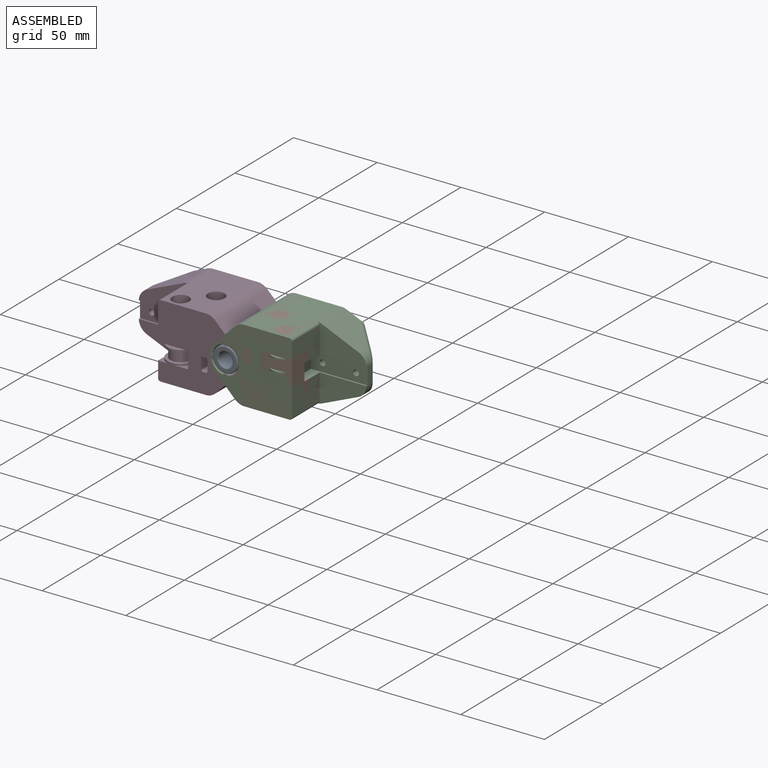
[diagram: assembled view]
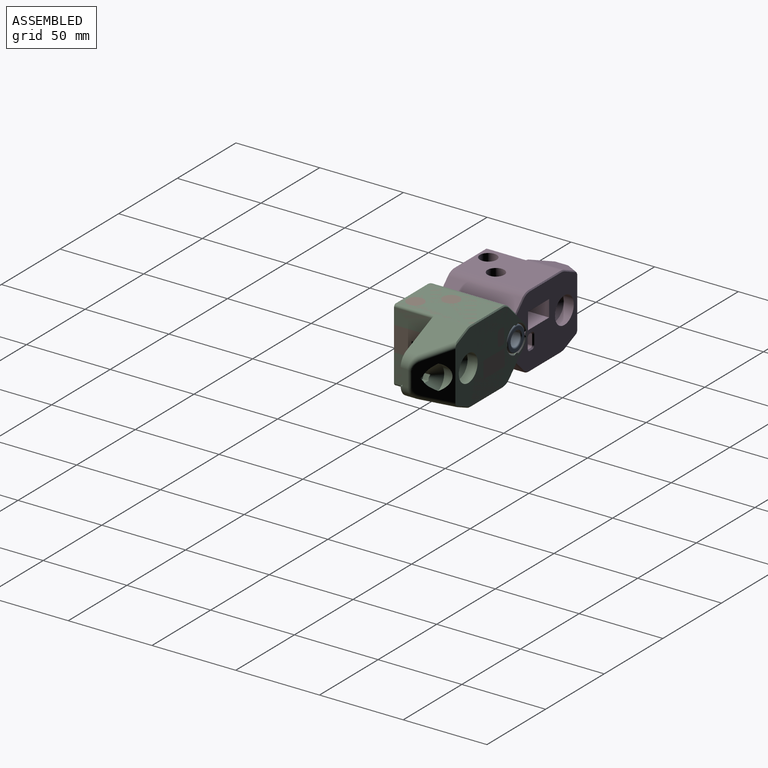
[diagram: assembled view, second angle]
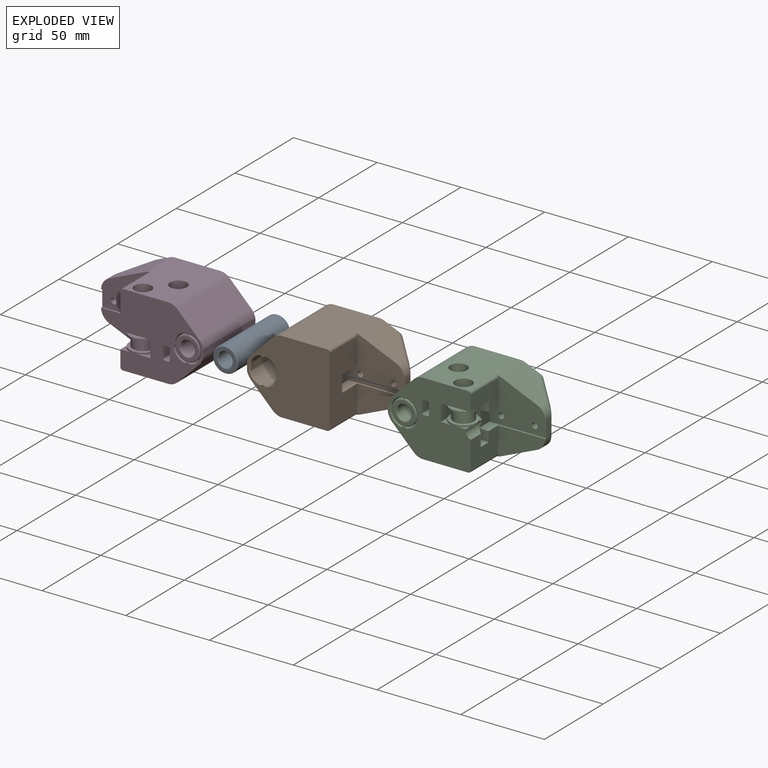
[diagram: exploded view]
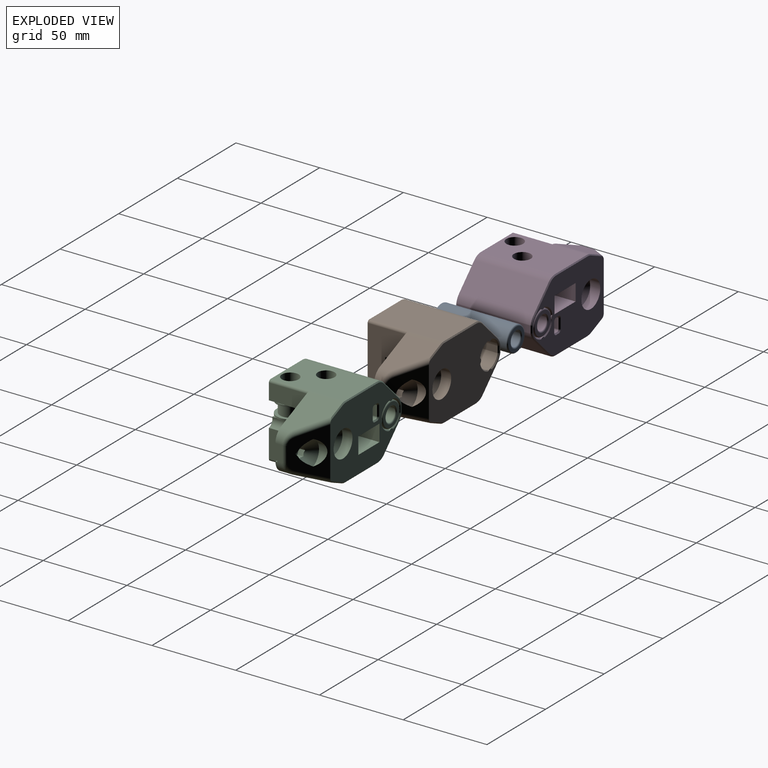
[diagram: exploded view, second angle]
FCSTD DOCUMENT  (FreeCAD 1.0R39109 (Git))
Label: y-carriages
License: All rights reserved
LicenseURL: http://en.wikipedia.org/wiki/All_rights_reserved
objects: Sketcher::SketchObject×24, PartDesign::Pocket×13, PartDesign::Groove×5, App::LinkElement×4, App::Link×4, PartDesign::Fillet×4, PartDesign::Body×4, PartDesign::Revolution×4, PartDesign::Chamfer×3, PartDesign::Pad×2, PartDesign::FeatureBase×2, App::Part×2, Spreadsheet::Sheet×1, PartDesign::LinearPattern×1, Part::Mirroring×1, App::DocumentObjectGroup×1
note: 152 computed .brp shape members not serialized (recipe doc carries the construction recipe); baked Part::Feature solids carry a one-line shape summary decoded from their .brp
EXTERNAL_REF file=../general/standard-stuff.FCStd obj=Body084

FEATURE [Sketcher::SketchObject] Sketch242
  ArcFitTolerance = 0
  AttachmentOffset = pos=(0,0,16) rot=(0,0,1;0rad)
  AttachmentSupport = -> [XZ_Plane253]
  FullyConstrained = true
  MakeInternals = false
  MapMode = 5
  Placement = pos=(0,-16,3.6e-15) rot=(1,0,0;1.5708rad)
  expr: .AttachmentOffset.Base.z = -Spreadsheet.idler_pos_2
  expr: Constraints[18] = Spreadsheet.inner_idler_pos_x
  expr: Constraints[25] = Spreadsheet.belt_offset
  sketch-geometry (10):
    g0: GeomPoint [constr] X=31.08 Y=1 Z=0
    g1: GeomPoint [constr] X=31.08 Y=6 Z=0
    g2: LineSegment StartX=31.08 StartY=1 StartZ=0 EndX=31.08 EndY=1.75 EndZ=0
    g3: LineSegment StartX=31.08 StartY=1.75 StartZ=0 EndX=35.08 EndY=1.75 EndZ=0
    g4: LineSegment StartX=35.08 StartY=1.75 StartZ=0 EndX=35.83 EndY=1 EndZ=0
    g5: LineSegment StartX=35.83 StartY=1 StartZ=0 EndX=31.08 EndY=1 EndZ=0
    g6: LineSegment StartX=31.08 StartY=11 StartZ=0 EndX=31.08 EndY=10.25 EndZ=0
    g7: LineSegment StartX=31.08 StartY=10.25 StartZ=0 EndX=35.08 EndY=10.25 EndZ=0
    g8: LineSegment StartX=35.08 StartY=10.25 StartZ=0 EndX=35.83 EndY=11 EndZ=0
    g9: LineSegment StartX=35.83 StartY=11 StartZ=0 EndX=31.08 EndY=11 EndZ=0
  constraints (26):
    c: Vertical(g1,g0)
    c: Coincident(g2,g0)
    c: Vertical(g2)
    c: Coincident(g2,g3)
    c: Horizontal(g3)
    c: Coincident(g3,g4)
    c: Coincident(g4,g5)
    c: Coincident(g5,g2)
    c: Horizontal(g5)
    c: Coincident(g6,g7)
    c: Horizontal(g7)
    c: Coincident(g7,g8)
    c: Coincident(g8,g9)
    c: Coincident(g9,g6)
    c: Vertical(g6)
    c: Horizontal(g9)
    c: Symmetric(g2,g6,g1)
    c: Equal(g2,g6)
    c: DistanceX(g1) = 31.08
    c: DistanceY(g2,g6) = 10
    c: DistanceX(g3,g3) = 4
    c: Angle(g4) = -0.785398
    c: Perpendicular(g4,g8)
    c: Equal(g9,g5)
    c: DistanceY(g2,g6) = 8.5
    c: DistanceY(g1) = 6
FEATURE [Sketcher::SketchObject] Sketch243
  ArcFitTolerance = 0
  AttachmentOffset = pos=(0,0,6) rot=(0,0,1;0rad)
  AttachmentSupport = -> [XY_Plane253]
  FullyConstrained = true
  MakeInternals = false
  MapMode = 5
  Placement = pos=(0,0,6) rot=(0,0,1;0rad)
  expr: .AttachmentOffset.Base.z = Spreadsheet.belt_offset
  expr: Constraints[12] = Spreadsheet.idler_pos_2
  expr: Constraints[13] = Spreadsheet.inner_idler_pos_x
  sketch-geometry (5):
    g0: ArcOfCircle CenterX=31.08 CenterY=-16 CenterZ=0 NormalX=0 NormalY=0 NormalZ=1 AngleXU=0 Radius=9 StartAngle=1.5708 EndAngle=3.14159
    g1: LineSegment StartX=22.08 StartY=-16 StartZ=0 EndX=22.08 EndY=-30 EndZ=0
    g2: LineSegment StartX=22.08 StartY=-30 StartZ=0 EndX=40.08 EndY=-30 EndZ=0
    g3: LineSegment StartX=40.08 StartY=-30 StartZ=0 EndX=40.08 EndY=-7 EndZ=0
    g4: LineSegment StartX=40.08 StartY=-7 StartZ=0 EndX=31.08 EndY=-7 EndZ=0
  constraints (14):
    c: Diameter(g0) = 18
    c: Vertical(g1)
    c: Coincident(g2,g1)
    c: Horizontal(g2)
    c: Coincident(g3,g2)
    c: Vertical(g3)
    c: Coincident(g4,g3)
    c: Horizontal(g4)
    c: Tangent(g0,g1) = -1.5708
    c: Tangent(g0,g4) = -1.5708
    c: Tangent(g3,g0)
    c: DistanceY(g1) = -30
    c: DistanceY(g0) = -16
    c: DistanceX(g0) = 31.08
FEATURE [Sketcher::SketchObject] Sketch244
  ArcFitTolerance = 0
  AttachmentOffset = pos=(0,0,-6) rot=(0,0,1;0rad)
  AttachmentSupport = -> [XY_Plane253]
  FullyConstrained = true
  MakeInternals = false
  MapMode = 5
  Placement = pos=(0,0,-6) rot=(0,0,1;0rad)
  expr: .AttachmentOffset.Base.z = -Spreadsheet.belt_offset
  expr: Constraints[24] = Spreadsheet.idler_pos_2
  expr: Constraints[30] = Spreadsheet.idler_pos_1
  sketch-geometry (14):
    g0: ArcOfCircle CenterX=19 CenterY=-3 CenterZ=0 NormalX=0 NormalY=0 NormalZ=1 AngleXU=0 Radius=9 StartAngle=3.14159 EndAngle=5.25009
    g1: LineSegment StartX=10 StartY=-3 StartZ=0 EndX=10 EndY=30 EndZ=0
    g2: LineSegment StartX=10 StartY=30 StartZ=0 EndX=28 EndY=30 EndZ=0
    g3: LineSegment StartX=28 StartY=30 StartZ=0 EndX=28 EndY=-3 EndZ=0
    g4: LineSegment StartX=23.6095 StartY=-10.73 StartZ=0 EndX=36.73 EndY=-10.73 EndZ=0
    g5: LineSegment StartX=40 StartY=-7.35 StartZ=0 EndX=26.8789 EndY=-7.35 EndZ=0
    g6: ArcOfCircle CenterX=19 CenterY=-3 CenterZ=0 NormalX=0 NormalY=0 NormalZ=1 AngleXU=0 Radius=9 StartAngle=5.77873 EndAngle=6.28319
    g7: GeomPoint [constr] X=19 Y=-9.1 Z=0
    g8: Circle [constr] CenterX=19 CenterY=-3 CenterZ=0 NormalX=0 NormalY=0 NormalZ=1 AngleXU=0 Radius=6.1
    g9: GeomPoint X=31.08 Y=-16 Z=0
    g10: Circle [constr] CenterX=31.08 CenterY=-16 CenterZ=0 NormalX=0 NormalY=0 NormalZ=1 AngleXU=0 Radius=6.1
    g11: GeomPoint [constr] X=31.08 Y=-9.9 Z=0
    g12: LineSegment StartX=36.73 StartY=-10.73 StartZ=0 EndX=40 EndY=-14 EndZ=0
    g13: LineSegment StartX=40 StartY=-14 StartZ=0 EndX=40 EndY=-7.35 EndZ=0
  constraints (37):
    c: Diameter(g0) = 18
    c: Vertical(g1)
    c: Coincident(g2,g1)
    c: Horizontal(g2)
    c: Coincident(g3,g2)
    c: Vertical(g3)
    c: DistanceY(g2) = 30
    c: Tangent(g0,g1) = 1.5708
    c: Horizontal(g4)
    c: Horizontal(g5)
    c: Equal(g0,g6)
    c: Coincident(g0,g4)
    c: Coincident(g6,g5)
    c: Coincident(g0,g6)
    c: Tangent(g6,g3) = 1.5708
    c: DistanceX(g5) = 40
    c: Vertical(g7,g0)
    c: DistanceY(g0,g7) = 1.63
    c: DistanceY(g7,g5) = 1.75
    c: Coincident(g8,g0)
    c: Diameter(g8) = 12.2
    c: PointOnObject(g7,g8)
    c: DistanceX(g0) = 19
    c: DistanceX(g9) = 31.08
    c: DistanceY(g9) = -16
    c: Coincident(g10,g9)
    c: Equal(g10,g8)
    c: PointOnObject(g11,g10)
    c: Vertical(g11,g9)
    c: DistanceY(g11,g7) = 0.8
    c: DistanceY(g0) = -3
    c: Coincident(g4,g12)
    c: Coincident(g12,g13)
    c: Coincident(g13,g5)
    c: Vertical(g13)
    c: Angle(g12) = -0.785398
    c: DistanceY(g12) = -14
FEATURE [Sketcher::SketchObject] Sketch245
  ArcFitTolerance = 0
  AttachmentOffset = pos=(0,0,16) rot=(0,0,1;0rad)
  AttachmentSupport = -> [XZ_Plane253]
  FullyConstrained = true
  MakeInternals = false
  MapMode = 5
  Placement = pos=(0,-16,3.6e-15) rot=(1,0,0;1.5708rad)
  expr: .AttachmentOffset.Base.z = -Spreadsheet.idler_pos_2
  expr: Constraints[17] = Spreadsheet.inner_idler_pos_x
  sketch-geometry (6):
    g0: LineSegment StartX=36.08 StartY=13.5 StartZ=0 EndX=36.08 EndY=22 EndZ=0
    g1: LineSegment StartX=36.08 StartY=22 StartZ=0 EndX=31.08 EndY=22 EndZ=0
    g2: LineSegment StartX=31.08 StartY=22 StartZ=0 EndX=31.08 EndY=-7 EndZ=0
    g3: LineSegment StartX=31.08 StartY=-7 StartZ=0 EndX=33.63 EndY=-7 EndZ=0
    g4: LineSegment StartX=33.63 StartY=-7 StartZ=0 EndX=33.63 EndY=13.5 EndZ=0
    g5: LineSegment StartX=33.63 StartY=13.5 StartZ=0 EndX=36.08 EndY=13.5 EndZ=0
  constraints (18):
    c: Vertical(g0)
    c: Coincident(g0,g1)
    c: Horizontal(g1)
    c: Coincident(g1,g2)
    c: Vertical(g2)
    c: Coincident(g2,g3)
    c: Horizontal(g3)
    c: Coincident(g3,g4)
    c: Coincident(g4,g5)
    c: Coincident(g5,g0)
    c: Horizontal(g5)
    c: DistanceY(g4,g4) = 20.5
    c: DistanceX(g5,g5) = 2.45
    c: DistanceX(g1,g1) = 5
    c: DistanceY(g4) = 13.5
    c: Vertical(g4)
    c: DistanceY(g0) = 22
    c: DistanceX(g1) = 31.08
FEATURE [Sketcher::SketchObject] Sketch246
  ArcFitTolerance = 0
  AttachmentOffset = pos=(0,0,3) rot=(0,0,1;0rad)
  AttachmentSupport = -> [XZ_Plane253]
  FullyConstrained = true
  MakeInternals = false
  MapMode = 5
  Placement = pos=(0,-3,7e-16) rot=(1,0,0;1.5708rad)
  expr: .AttachmentOffset.Base.z = -Spreadsheet.idler_pos_1
  sketch-geometry (6):
    g0: LineSegment StartX=19 StartY=-13 StartZ=0 EndX=19 EndY=22 EndZ=0
    g1: LineSegment StartX=19 StartY=22 StartZ=0 EndX=14 EndY=22 EndZ=0
    g2: LineSegment StartX=14 StartY=22 StartZ=0 EndX=14 EndY=8 EndZ=0
    g3: LineSegment StartX=14 StartY=8 StartZ=0 EndX=16.55 EndY=8 EndZ=0
    g4: LineSegment StartX=16.55 StartY=8 StartZ=0 EndX=16.55 EndY=-13 EndZ=0
    g5: LineSegment StartX=16.55 StartY=-13 StartZ=0 EndX=19 EndY=-13 EndZ=0
  constraints (18):
    c: Vertical(g0)
    c: Coincident(g0,g1)
    c: Horizontal(g1)
    c: Coincident(g1,g2)
    c: Vertical(g2)
    c: Coincident(g2,g3)
    c: Horizontal(g3)
    c: Coincident(g3,g4)
    c: Vertical(g4)
    c: Coincident(g4,g5)
    c: Coincident(g5,g0)
    c: Horizontal(g5)
    c: DistanceX(g5,g5) = 2.45
    c: DistanceX(g0) = 19
    c: DistanceX(g1,g1) = 5
    c: DistanceY(g4) = -13
    c: DistanceY(g4,g4) = 21
    c: DistanceY(g0) = 22
FEATURE [Sketcher::SketchObject] Sketch247
  ArcFitTolerance = 0
  AttachmentOffset = pos=(0,0,3) rot=(0,0,1;0rad)
  AttachmentSupport = -> [XZ_Plane253]
  FullyConstrained = true
  MakeInternals = false
  MapMode = 5
  Placement = pos=(0,-3,7e-16) rot=(1,0,0;1.5708rad)
  expr: .AttachmentOffset.Base.z = -Spreadsheet.idler_pos_1
  expr: Constraints[1] = -Spreadsheet.belt_offset
  sketch-geometry (9):
    g0: GeomPoint [constr] X=19 Y=-6 Z=0
    g1: LineSegment StartX=19 StartY=-1 StartZ=0 EndX=19 EndY=-1.75 EndZ=0
    g2: LineSegment StartX=19 StartY=-1.75 StartZ=0 EndX=23 EndY=-1.75 EndZ=0
    g3: LineSegment StartX=23 StartY=-1.75 StartZ=0 EndX=23.75 EndY=-1 EndZ=0
    g4: LineSegment StartX=23.75 StartY=-1 StartZ=0 EndX=19 EndY=-1 EndZ=0
    g5: LineSegment StartX=19 StartY=-11 StartZ=0 EndX=19 EndY=-10.25 EndZ=0
    g6: LineSegment StartX=19 StartY=-10.25 StartZ=0 EndX=23 EndY=-10.25 EndZ=0
    g7: LineSegment StartX=23 StartY=-10.25 StartZ=0 EndX=23.75 EndY=-11 EndZ=0
    g8: LineSegment StartX=23.75 StartY=-11 StartZ=0 EndX=19 EndY=-11 EndZ=0
  constraints (25):
    c: DistanceX(g0) = 19
    c: DistanceY(g0) = -6
    c: Vertical(g1)
    c: Coincident(g1,g2)
    c: Horizontal(g2)
    c: Coincident(g2,g3)
    c: Coincident(g3,g4)
    c: Coincident(g4,g1)
    c: Horizontal(g4)
    c: Vertical(g5)
    c: Coincident(g5,g6)
    c: Horizontal(g6)
    c: Coincident(g6,g7)
    c: Coincident(g7,g8)
    c: Coincident(g8,g5)
    c: Horizontal(g8)
    c: Symmetric(g5,g1,g0)
    c: Vertical(g5,g1)
    c: Angle(g7) = -0.785398
    c: DistanceX(g6,g6) = 4
    c: Equal(g1,g5)
    c: Perpendicular(g7,g3)
    c: Equal(g2,g6)
    c: DistanceY(g5,g1) = 10
    c: DistanceY(g5,g1) = 8.5
FEATURE [Sketcher::SketchObject] Sketch248
  ArcFitTolerance = 0
  AttachmentOffset = pos=(0,0,16) rot=(0,0,1;0rad)
  AttachmentSupport = -> [XZ_Plane254]
  FullyConstrained = true
  MakeInternals = false
  MapMode = 5
  Placement = pos=(0,-16,3.6e-15) rot=(1,0,0;1.5708rad)
  expr: .AttachmentOffset.Base.z = -Spreadsheet.idler_pos_2
  expr: Constraints[17] = -Spreadsheet.belt_offset
  expr: Constraints[18] = -Spreadsheet.inner_idler_pos_x
  sketch-geometry (10):
    g0: GeomPoint [constr] X=-31.08 Y=-11 Z=0
    g1: GeomPoint [constr] X=-31.08 Y=-6 Z=0
    g2: LineSegment StartX=-31.08 StartY=-11 StartZ=0 EndX=-31.08 EndY=-10.25 EndZ=0
    g3: LineSegment StartX=-31.08 StartY=-10.25 StartZ=0 EndX=-27.08 EndY=-10.25 EndZ=0
    g4: LineSegment StartX=-27.08 StartY=-10.25 StartZ=0 EndX=-26.33 EndY=-11 EndZ=0
    g5: LineSegment StartX=-26.33 StartY=-11 StartZ=0 EndX=-31.08 EndY=-11 EndZ=0
    g6: LineSegment StartX=-31.08 StartY=-1.75 StartZ=0 EndX=-31.08 EndY=-1 EndZ=0
    g7: LineSegment StartX=-31.08 StartY=-1 StartZ=0 EndX=-26.33 EndY=-1 EndZ=0
    g8: LineSegment StartX=-26.33 StartY=-1 StartZ=0 EndX=-27.08 EndY=-1.75 EndZ=0
    g9: LineSegment StartX=-27.08 StartY=-1.75 StartZ=0 EndX=-31.08 EndY=-1.75 EndZ=0
  constraints (26):
    c: Vertical(g1,g0)
    c: Coincident(g2,g0)
    c: Vertical(g2)
    c: Coincident(g2,g3)
    c: Horizontal(g3)
    c: Coincident(g3,g4)
    c: Coincident(g4,g5)
    c: Coincident(g5,g2)
    c: Horizontal(g5)
    c: Coincident(g6,g7)
    c: Horizontal(g7)
    c: Coincident(g7,g8)
    c: Coincident(g8,g9)
    c: Coincident(g9,g6)
    c: Vertical(g6)
    c: Horizontal(g9)
    c: Equal(g2,g6)
    c: DistanceY(g-1,g1) = -6
    c: DistanceX(g1) = -31.08
    c: DistanceX(g3,g3) = 4
    c: Angle(g4) = -0.785398
    c: Perpendicular(g4,g8)
    c: Symmetric(g6,g2,g1)
    c: DistanceY(g2,g6) = 8.5
    c: DistanceY(g2,g6) = 10
    c: Vertical(g8,g3)
FEATURE [Sketcher::SketchObject] Sketch249
  ArcFitTolerance = 0
  AttachmentOffset = pos=(0,0,-6) rot=(0,0,1;0rad)
  AttachmentSupport = -> [XY_Plane254]
  FullyConstrained = true
  MakeInternals = false
  MapMode = 5
  Placement = pos=(0,0,-6) rot=(0,0,1;0rad)
  expr: .AttachmentOffset.Base.z = -Spreadsheet.belt_offset
  expr: Constraints[12] = Spreadsheet.idler_pos_2
  expr: Constraints[13] = -Spreadsheet.inner_idler_pos_x
  sketch-geometry (6):
    g0: LineSegment StartX=-40 StartY=-7 StartZ=0 EndX=-40 EndY=-22.5 EndZ=0
    g1: LineSegment StartX=-40 StartY=-22.5 StartZ=0 EndX=-22.08 EndY=-22.5 EndZ=0
    g2: LineSegment StartX=-22.08 StartY=-22.5 StartZ=0 EndX=-22.08 EndY=-16 EndZ=0
    g3: LineSegment StartX=-31.08 StartY=-7 StartZ=0 EndX=-40 EndY=-7 EndZ=0
    g4: ArcOfCircle CenterX=-31.08 CenterY=-16 CenterZ=0 NormalX=0 NormalY=0 NormalZ=1 AngleXU=0 Radius=9 StartAngle=0 EndAngle=1.5708
    g5: GeomPoint [constr] X=-22.08 Y=-7 Z=0
  constraints (16):
    c: Coincident(g0,g1)
    c: Coincident(g1,g2)
    c: Coincident(g3,g0)
    c: Vertical(g0)
    c: Vertical(g2)
    c: Horizontal(g1)
    c: Horizontal(g3)
    c: PointOnObject(g5,g2)
    c: PointOnObject(g5,g3)
    c: Tangent(g2,g4) = -1.5708
    c: Tangent(g3,g4) = -1.5708
    c: Diameter(g4) = 18
    c: DistanceY(g4) = -16
    c: DistanceX(g4) = -31.08
    c: DistanceY(g1) = -22.5
    c: DistanceX(g0) = -40
FEATURE [Sketcher::SketchObject] Sketch250
  ArcFitTolerance = 0
  AttachmentOffset = pos=(0,0,6) rot=(0,0,1;0rad)
  AttachmentSupport = -> [XY_Plane254]
  FullyConstrained = true
  MakeInternals = false
  MapMode = 5
  Placement = pos=(0,0,6) rot=(0,0,1;0rad)
  expr: .AttachmentOffset.Base.z = Spreadsheet.belt_offset
  expr: Constraints[6] = -19
  expr: Constraints[7] = Spreadsheet.idler_pos_1
  sketch-geometry (13):
    g0: ArcOfCircle CenterX=-19 CenterY=-3 CenterZ=0 NormalX=0 NormalY=0 NormalZ=1 AngleXU=0 Radius=9 StartAngle=3.14159 EndAngle=3.64605
    g1: LineSegment StartX=-28 StartY=-3 StartZ=0 EndX=-28 EndY=22.5 EndZ=0
    g2: LineSegment StartX=-28 StartY=22.5 StartZ=0 EndX=-10 EndY=22.5 EndZ=0
    g3: LineSegment StartX=-10 StartY=22.5 StartZ=0 EndX=-10 EndY=-3 EndZ=0
    g4: LineSegment StartX=-26.8789 StartY=-7.35 StartZ=0 EndX=-40 EndY=-7.35 EndZ=0
    g5: ArcOfCircle CenterX=-19 CenterY=-3 CenterZ=0 NormalX=0 NormalY=0 NormalZ=1 AngleXU=0 Radius=9 StartAngle=4.20132 EndAngle=6.28319
    g6: Circle [constr] CenterX=-19 CenterY=-3 CenterZ=0 NormalX=0 NormalY=0 NormalZ=1 AngleXU=0 Radius=6.1
    g7: GeomPoint [constr] X=-19 Y=-9.1 Z=0
    g8: GeomPoint [constr] X=-40 Y=-9.1 Z=0
    g9: LineSegment StartX=-40 StartY=-7.35 StartZ=0 EndX=-40 EndY=-14 EndZ=0
    g10: LineSegment StartX=-40 StartY=-14 StartZ=0 EndX=-36.85 EndY=-10.85 EndZ=0
    g11: LineSegment StartX=-36.85 StartY=-10.85 StartZ=0 EndX=-23.402 EndY=-10.85 EndZ=0
    g12: GeomPoint X=-40 Y=-10.85 Z=0
  constraints (33):
    c: Tangent(g0,g1) = 1.5708
    c: Coincident(g1,g2)
    c: Horizontal(g2)
    c: Coincident(g2,g3)
    c: Vertical(g3)
    c: Vertical(g1)
    c: DistanceX(g0) = -19
    c: DistanceY(g0) = -3
    c: DistanceY(g2) = 22.5
    c: Diameter(g0) = 18
    c: Horizontal(g4)
    c: Equal(g0,g5)
    c: Coincident(g0,g4)
    c: Coincident(g0,g5)
    c: DistanceX(g4) = -40
    c: Coincident(g6,g0)
    c: Diameter(g6) = 12.2
    c: PointOnObject(g7,g6)
    c: Vertical(g7,g0)
    c: Horizontal(g8,g7)
    c: Tangent(g3,g5) = 1.5708
    c: Coincident(g4,g9)
    c: Vertical(g9)
    c: Coincident(g9,g10)
    c: Coincident(g10,g11)
    c: Coincident(g11,g5)
    c: Horizontal(g11)
    c: Angle(g10) = 0.785398
    c: DistanceY(g9) = -14
    c: PointOnObject(g12,g11)
    c: Symmetric(g12,g4,g8)
    c: DistanceY(g12,g4) = 3.5
    c: PointOnObject(g12,g9)
FEATURE [Sketcher::SketchObject] Sketch251
  ArcFitTolerance = 0
  AttachmentOffset = pos=(0,0,3) rot=(0,0,1;0rad)
  AttachmentSupport = -> [XZ_Plane254]
  FullyConstrained = true
  MakeInternals = false
  MapMode = 5
  Placement = pos=(0,-3,7e-16) rot=(1,0,0;1.5708rad)
  expr: .AttachmentOffset.Base.z = -Spreadsheet.idler_pos_1
  sketch-geometry (6):
    g0: LineSegment StartX=-14 StartY=16 StartZ=0 EndX=-14 EndY=22 EndZ=0
    g1: LineSegment StartX=-14 StartY=22 StartZ=0 EndX=-19 EndY=22 EndZ=0
    g2: LineSegment StartX=-19 StartY=22 StartZ=0 EndX=-19 EndY=-5 EndZ=0
    g3: LineSegment StartX=-19 StartY=-5 StartZ=0 EndX=-16.55 EndY=-5 EndZ=0
    g4: LineSegment StartX=-16.55 StartY=-5 StartZ=0 EndX=-16.55 EndY=16 EndZ=0
    g5: LineSegment StartX=-16.55 StartY=16 StartZ=0 EndX=-14 EndY=16 EndZ=0
  constraints (18):
    c: Vertical(g0)
    c: Coincident(g0,g1)
    c: Horizontal(g1)
    c: Coincident(g1,g2)
    c: Vertical(g2)
    c: Coincident(g2,g3)
    c: Horizontal(g3)
    c: Coincident(g3,g4)
    c: Coincident(g4,g5)
    c: Coincident(g5,g0)
    c: Horizontal(g5)
    c: DistanceY(g4,g4) = 21
    c: DistanceX(g1,g1) = 5
    c: DistanceY(g4) = 16
    c: Vertical(g4)
    c: DistanceY(g0) = 22
    c: DistanceX(g3,g3) = 2.45
    c: DistanceX(g2) = -19
FEATURE [Sketcher::SketchObject] Sketch252
  ArcFitTolerance = 0
  AttachmentOffset = pos=(0,0,16) rot=(0,0,1;0rad)
  AttachmentSupport = -> [XZ_Plane254]
  FullyConstrained = true
  MakeInternals = false
  MapMode = 5
  Placement = pos=(0,-16,3.6e-15) rot=(1,0,0;1.5708rad)
  expr: .AttachmentOffset.Base.z = -Spreadsheet.idler_pos_2
  expr: Constraints[14] = -Spreadsheet.inner_idler_pos_x
  sketch-geometry (6):
    g0: LineSegment StartX=-26.08 StartY=3 StartZ=0 EndX=-26.08 EndY=22 EndZ=0
    g1: LineSegment StartX=-26.08 StartY=22 StartZ=0 EndX=-31.08 EndY=22 EndZ=0
    g2: LineSegment StartX=-31.08 StartY=22 StartZ=0 EndX=-31.08 EndY=-16 EndZ=0
    g3: LineSegment StartX=-31.08 StartY=-16 StartZ=0 EndX=-28.63 EndY=-16 EndZ=0
    g4: LineSegment StartX=-28.63 StartY=-16 StartZ=0 EndX=-28.63 EndY=3 EndZ=0
    g5: LineSegment StartX=-28.63 StartY=3 StartZ=0 EndX=-26.08 EndY=3 EndZ=0
  constraints (18):
    c: Vertical(g0)
    c: Coincident(g0,g1)
    c: Horizontal(g1)
    c: Coincident(g1,g2)
    c: Vertical(g2)
    c: Coincident(g2,g3)
    c: Horizontal(g3)
    c: Coincident(g3,g4)
    c: Vertical(g4)
    c: Coincident(g4,g5)
    c: Coincident(g5,g0)
    c: Horizontal(g5)
    c: DistanceX(g1,g1) = 5
    c: DistanceY(g0) = 3
    c: DistanceX(g1) = -31.08
    c: DistanceY(g3) = -16
    c: DistanceY(g0) = 22
    c: DistanceX(g3,g3) = 2.45
FEATURE [Sketcher::SketchObject] Sketch253
  ArcFitTolerance = 0
  AttachmentOffset = pos=(0,0,3) rot=(0,0,1;0rad)
  AttachmentSupport = -> [XZ_Plane254]
  FullyConstrained = true
  MakeInternals = false
  MapMode = 5
  Placement = pos=(0,-3,7e-16) rot=(1,0,0;1.5708rad)
  expr: .AttachmentOffset.Base.z = -Spreadsheet.idler_pos_1
  expr: Constraints[0] = Spreadsheet.belt_offset
  sketch-geometry (9):
    g0: GeomPoint [constr] X=-19 Y=6 Z=0
    g1: LineSegment StartX=-19 StartY=11 StartZ=0 EndX=-19 EndY=10.25 EndZ=0
    g2: LineSegment StartX=-19 StartY=10.25 StartZ=0 EndX=-15 EndY=10.25 EndZ=0
    g3: LineSegment StartX=-15 StartY=10.25 StartZ=0 EndX=-14.25 EndY=11 EndZ=0
    g4: LineSegment StartX=-14.25 StartY=11 StartZ=0 EndX=-19 EndY=11 EndZ=0
    g5: LineSegment StartX=-19 StartY=1 StartZ=0 EndX=-19 EndY=1.75 EndZ=0
    g6: LineSegment StartX=-19 StartY=1.75 StartZ=0 EndX=-15 EndY=1.75 EndZ=0
    g7: LineSegment StartX=-15 StartY=1.75 StartZ=0 EndX=-14.25 EndY=1 EndZ=0
    g8: LineSegment StartX=-14.25 StartY=1 StartZ=0 EndX=-19 EndY=1 EndZ=0
  constraints (25):
    c: DistanceY(g0) = 6
    c: Vertical(g1)
    c: Coincident(g1,g2)
    c: Horizontal(g2)
    c: Coincident(g2,g3)
    c: Coincident(g3,g4)
    c: Coincident(g4,g1)
    c: Horizontal(g4)
    c: Vertical(g5)
    c: Coincident(g5,g6)
    c: Horizontal(g6)
    c: Coincident(g6,g7)
    c: Coincident(g7,g8)
    c: Coincident(g8,g5)
    c: Horizontal(g8)
    c: Symmetric(g5,g1,g0)
    c: Vertical(g5,g1)
    c: Angle(g7) = -0.785398
    c: DistanceX(g6,g6) = 4
    c: Equal(g1,g5)
    c: Perpendicular(g7,g3)
    c: Equal(g2,g6)
    c: DistanceY(g5,g1) = 10
    c: DistanceY(g5,g1) = 8.5
    c: DistanceX(g0) = -19
FEATURE [Sketcher::SketchObject] Sketch289
  ArcFitTolerance = 0
  AttachmentSupport = -> [XZ_Plane253]
  FullyConstrained = true
  MakeInternals = false
  MapMode = 5
  Placement = pos=(0,0,0) rot=(1,0,0;1.5708rad)
  expr: Constraints[26] = Spreadsheet.belt_offset
  sketch-geometry (13):
    g0: LineSegment StartX=11 StartY=9 StartZ=0 EndX=11 EndY=3 EndZ=0
    g1: LineSegment StartX=12 StartY=2 StartZ=0 EndX=14 EndY=2 EndZ=0
    g2: LineSegment StartX=15 StartY=3 StartZ=0 EndX=15 EndY=9 EndZ=0
    g3: LineSegment StartX=14 StartY=10 StartZ=0 EndX=12 EndY=10 EndZ=0
    g4: ArcOfCircle CenterX=14 CenterY=9 CenterZ=0 NormalX=0 NormalY=0 NormalZ=1 AngleXU=0 Radius=1 StartAngle=-9e-16 EndAngle=1.5708
    g5: GeomPoint [constr] X=15 Y=10 Z=0
    g6: ArcOfCircle CenterX=14 CenterY=3 CenterZ=0 NormalX=0 NormalY=0 NormalZ=1 AngleXU=0 Radius=1 StartAngle=4.71239 EndAngle=6.28319
    g7: GeomPoint [constr] X=15 Y=2 Z=0
    g8: ArcOfCircle CenterX=12 CenterY=3 CenterZ=0 NormalX=0 NormalY=0 NormalZ=1 AngleXU=0 Radius=1 StartAngle=3.14159 EndAngle=4.71239
    g9: GeomPoint [constr] X=11 Y=2 Z=0
    g10: ArcOfCircle CenterX=12 CenterY=9 CenterZ=0 NormalX=0 NormalY=0 NormalZ=1 AngleXU=0 Radius=1 StartAngle=1.5708 EndAngle=3.14159
    g11: GeomPoint [constr] X=11 Y=10 Z=0
    g12: GeomPoint X=13 Y=6 Z=0
  constraints (29):
    c: Vertical(g0)
    c: Vertical(g2)
    c: Horizontal(g1)
    c: Horizontal(g3)
    c: PointOnObject(g5,g2)
    c: PointOnObject(g5,g3)
    c: Tangent(g2,g4) = -1.5708
    c: Tangent(g3,g4) = -1.5708
    c: PointOnObject(g7,g1)
    c: PointOnObject(g7,g2)
    c: Tangent(g1,g6) = -1.5708
    c: Tangent(g2,g6) = -1.5708
    c: PointOnObject(g9,g0)
    c: PointOnObject(g9,g1)
    c: Tangent(g0,g8) = -1.5708
    c: Tangent(g1,g8) = -1.5708
    c: PointOnObject(g11,g0)
    c: PointOnObject(g11,g3)
    c: Tangent(g0,g10) = -1.5708
    c: Tangent(g3,g10) = -1.5708
    c: Symmetric(g5,g9,g12)
    c: Equal(g10,g8)
    c: Equal(g8,g6)
    c: Radius(g10) = 1
    c: Equal(g4,g10)
    c: DistanceX(g12) = 13
    c: DistanceY(g12) = 6
    c: DistanceY(g2,g2) = 6
    c: DistanceX(g3,g3) = 2
FEATURE [Sketcher::SketchObject] Sketch290
  ArcFitTolerance = 0
  AttachmentSupport = -> [XZ_Plane254]
  FullyConstrained = true
  MakeInternals = false
  MapMode = 5
  Placement = pos=(0,0,0) rot=(1,0,0;1.5708rad)
  expr: Constraints[27] = -Spreadsheet.belt_offset
  sketch-geometry (14):
    g0: LineSegment StartX=-14.5 StartY=-3 StartZ=0 EndX=-14.5 EndY=-9 EndZ=0
    g1: LineSegment StartX=-13.5 StartY=-10 StartZ=0 EndX=-11.5 EndY=-10 EndZ=0
    g2: LineSegment StartX=-10.5 StartY=-9 StartZ=0 EndX=-10.5 EndY=-3 EndZ=0
    g3: LineSegment StartX=-11.5 StartY=-2 StartZ=0 EndX=-13.5 EndY=-2 EndZ=0
    g4: ArcOfCircle CenterX=-11.5 CenterY=-3 CenterZ=0 NormalX=0 NormalY=0 NormalZ=1 AngleXU=0 Radius=1 StartAngle=0 EndAngle=1.5708
    g5: GeomPoint [constr] X=-10.5 Y=-2 Z=0
    g6: ArcOfCircle CenterX=-11.5 CenterY=-9 CenterZ=0 NormalX=0 NormalY=0 NormalZ=1 AngleXU=0 Radius=1 StartAngle=4.71239 EndAngle=6.28319
    g7: GeomPoint [constr] X=-10.5 Y=-10 Z=0
    g8: ArcOfCircle CenterX=-13.5 CenterY=-9 CenterZ=0 NormalX=0 NormalY=0 NormalZ=1 AngleXU=0 Radius=1 StartAngle=3.14159 EndAngle=4.71239
    g9: GeomPoint [constr] X=-14.5 Y=-10 Z=0
    g10: ArcOfCircle CenterX=-13.5 CenterY=-3 CenterZ=0 NormalX=0 NormalY=0 NormalZ=1 AngleXU=0 Radius=1 StartAngle=1.5708 EndAngle=3.14159
    g11: GeomPoint [constr] X=-14.5 Y=-2 Z=0
    g12: GeomPoint X=-12.5 Y=-6 Z=0
    g13: GeomPoint X=-19 Y=0 Z=0
  constraints (31):
    c: Vertical(g0)
    c: Vertical(g2)
    c: Horizontal(g1)
    c: Horizontal(g3)
    c: PointOnObject(g5,g2)
    c: PointOnObject(g5,g3)
    c: Tangent(g2,g4) = -1.5708
    c: Tangent(g3,g4) = -1.5708
    c: PointOnObject(g7,g1)
    c: PointOnObject(g7,g2)
    c: Tangent(g1,g6) = -1.5708
    c: Tangent(g2,g6) = -1.5708
    c: PointOnObject(g9,g0)
    c: PointOnObject(g9,g1)
    c: Tangent(g0,g8) = -1.5708
    c: Tangent(g1,g8) = -1.5708
    c: PointOnObject(g11,g0)
    c: PointOnObject(g11,g3)
    c: Tangent(g0,g10) = -1.5708
    c: Tangent(g3,g10) = -1.5708
    c: Equal(g8,g10)
    c: Equal(g8,g4)
    c: Equal(g8,g6)
    c: Radius(g8) = 1
    c: DistanceX(g3,g3) = 2
    c: DistanceY(g2,g2) = 6
    c: Symmetric(g5,g9,g12)
    c: DistanceY(g12) = -6
    c: PointOnObject(g13,g-1)
    c: DistanceX(g13) = -19
    c: DistanceX(g13,g12) = 6.5
FEATURE [App::LinkElement] Link_i0
  LinkPlacement = pos=(-19,-3,6) rot=(0,0,1;0rad)
  LinkedObject = -> <external ../general/standard-stuff.FCStd>#Body084
  Placement = pos=(-19,-3,6) rot=(0,0,1;0rad)
  _LinkOwner = 285
  expr: .Placement.Base.y = Spreadsheet.idler_pos_1
  expr: .Placement.Base.z = Spreadsheet.belt_offset
FEATURE [App::LinkElement] Link_i1
  LinkPlacement = pos=(-31.08,-16,-6) rot=(0,0,1;0rad)
  LinkedObject = -> <external ../general/standard-stuff.FCStd>#Body084
  Placement = pos=(-31.08,-16,-6) rot=(0,0,1;0rad)
  _LinkOwner = 285
  expr: .Placement.Base.y = Spreadsheet.idler_pos_2
  expr: .Placement.Base.z = -Spreadsheet.belt_offset
FEATURE [App::Link] Link  label="idlers-right"
  ElementCount = 2
  ElementList = -> [Link_i0,Link_i1]
  LinkedObject = -> <external ../general/standard-stuff.FCStd>#Body084
FEATURE [App::LinkElement] Link001_i0
  LinkPlacement = pos=(19,-3,-6) rot=(0,0,1;0rad)
  LinkedObject = -> <external ../general/standard-stuff.FCStd>#Body084
  Placement = pos=(19,-3,-6) rot=(0,0,1;0rad)
  _LinkOwner = 388
  expr: .Placement.Base.y = Spreadsheet.idler_pos_1
  expr: .Placement.Base.z = -Spreadsheet.belt_offset
FEATURE [App::LinkElement] Link001_i1
  LinkPlacement = pos=(31.08,-16,6) rot=(0,0,1;0rad)
  LinkedObject = -> <external ../general/standard-stuff.FCStd>#Body084
  Placement = pos=(31.08,-16,6) rot=(0,0,1;0rad)
  _LinkOwner = 388
  expr: .Placement.Base.y = Spreadsheet.idler_pos_2
  expr: .Placement.Base.z = Spreadsheet.belt_offset
FEATURE [App::Link] Link001  label="idlers-left"
  ElementCount = 2
  ElementList = -> [Link001_i0,Link001_i1]
  LinkedObject = -> <external ../general/standard-stuff.FCStd>#Body084
FEATURE [Sketcher::SketchObject] Sketch
  ArcFitTolerance = 1e-06
  AttachmentSupport = -> [XZ_Plane256]
  FullyConstrained = true
  MakeInternals = false
  MapMode = 5
  Placement = pos=(0,0,0) rot=(1,0,0;1.5708rad)
  sketch-geometry (2):
    g0: Circle CenterX=0 CenterY=0 CenterZ=0 NormalX=0 NormalY=0 NormalZ=1 AngleXU=0 Radius=4.25
    g1: Circle CenterX=0 CenterY=0 CenterZ=0 NormalX=0 NormalY=0 NormalZ=1 AngleXU=0 Radius=7.5
  constraints (4):
    c: Coincident(g0,g-1)
    c: Coincident(g1,g0)
    c: Diameter(g0) = 8.5
    c: Diameter(g1) = 15
FEATURE [PartDesign::Pad] Pad
  Direction = (0,-1,2e-16)
  Length = 45
  Length2 = 10
  Midplane = true
  Placement = pos=(0,0,0) rot=(1,0,0;1.5708rad)
  Profile = -> Sketch
  ReferenceAxis = -> Sketch [N_Axis]
  Suppressed = false
  Type = 0
FEATURE [App::Link] Link002  label="lm8luu-bearing-left"
  LinkedObject = -> Body
FEATURE [App::Link] Link003  label="lm8luu-bearing-right"
  LinkedObject = -> Link002
FEATURE [PartDesign::Fillet] Fillet002
  Base = -> Pad [Edge2,Edge5,Edge6,Edge3]
  BaseFeature = -> Pad
  Placement = pos=(0,0,0) rot=(1,0,0;1.5708rad)
  Radius = 0.8
  SupportTransform = false
  Suppressed = false
  UseAllEdges = false
FEATURE [PartDesign::Body] Body  label="lm8luu-bearing-drv"
  AllowCompound = false
  Group = -> [Sketch,Pad,Fillet002]
  Origin = -> Origin257
  Tip = -> Fillet002
FEATURE [Sketcher::SketchObject] Sketch293
  ArcFitTolerance = 1e-06
  AttachmentSupport = -> [XY_Plane251]
  FullyConstrained = true
  MakeInternals = false
  MapMode = 5
  sketch-geometry (5):
    g0: LineSegment StartX=34 StartY=-6 StartZ=0 EndX=34 EndY=2 EndZ=0
    g1: LineSegment StartX=34 StartY=2 StartZ=0 EndX=68 EndY=2 EndZ=0
    g2: LineSegment StartX=68 StartY=2 StartZ=0 EndX=68 EndY=-20 EndZ=0
    g3: LineSegment StartX=68 StartY=-20 StartZ=0 EndX=48 EndY=-20 EndZ=0
    g4: LineSegment StartX=48 StartY=-20 StartZ=0 EndX=34 EndY=-6 EndZ=0
  constraints (15):
    c: Vertical(g0)
    c: Coincident(g0,g1)
    c: Horizontal(g1)
    c: Coincident(g1,g2)
    c: Vertical(g2)
    c: Coincident(g2,g3)
    c: Horizontal(g3)
    c: Coincident(g3,g4)
    c: Coincident(g4,g0)
    c: DistanceY(g1) = 2
    c: DistanceX(g1) = 68
    c: DistanceX(g0) = 34
    c: Angle(g4) = 2.35619
    c: DistanceY(g0,g0) = 8
    c: DistanceY(g3) = -20
FEATURE [Sketcher::SketchObject] Sketch294
  ArcFitTolerance = 1e-06
  AttachmentSupport = -> [XZ_Plane251]
  FullyConstrained = true
  MakeInternals = false
  MapMode = 5
  Placement = pos=(0,0,0) rot=(1,0,0;1.5708rad)
  sketch-geometry (40):
    g0: LineSegment StartX=11.5251 StartY=-22 StartZ=0 EndX=38.3579 EndY=-22 EndZ=0
    g1: LineSegment StartX=41.5093 StartY=-21.3532 StartZ=0 EndX=63.1514 EndY=-12.078 EndZ=0
    g2: LineSegment StartX=68 StartY=-4.72483 StartZ=0 EndX=68 EndY=4.72483 EndZ=0
    g3: LineSegment StartX=63.1514 StartY=12.078 StartZ=0 EndX=41.5093 EndY=21.3532 EndZ=0
    g4: LineSegment StartX=38.3579 StartY=22 StartZ=0 EndX=11.5251 EndY=22 EndZ=0
    g5: ArcOfCircle CenterX=0 CenterY=0 CenterZ=0 NormalX=0 NormalY=0 NormalZ=1 AngleXU=0 Radius=7.75 StartAngle=3.39628 EndAngle=4.59949
    g6: GeomPoint X=-9.5 Y=0 Z=0
    g7: GeomPoint X=0 Y=15 Z=0
    g8: ArcOfCircle CenterX=11.5251 CenterY=14 CenterZ=0 NormalX=0 NormalY=0 NormalZ=1 AngleXU=0 Radius=8 StartAngle=1.5708 EndAngle=2.35619
    g9: GeomPoint [constr] X=8.21142 Y=22 Z=0
    g10: ArcOfCircle CenterX=11.5251 CenterY=-14 CenterZ=0 NormalX=0 NormalY=0 NormalZ=1 AngleXU=0 Radius=8 StartAngle=3.92699 EndAngle=4.71239
    g11: GeomPoint [constr] X=8.21142 Y=-22 Z=0
    g12: ArcOfCircle CenterX=38.3579 CenterY=14 CenterZ=0 NormalX=0 NormalY=0 NormalZ=1 AngleXU=0 Radius=8 StartAngle=1.1659 EndAngle=1.5708
    g13: GeomPoint [constr] X=40 Y=22 Z=0
    g14: ArcOfCircle CenterX=60 CenterY=4.72483 CenterZ=0 NormalX=0 NormalY=0 NormalZ=1 AngleXU=0 Radius=8 StartAngle=0 EndAngle=1.1659
    g15: GeomPoint [constr] X=68 Y=10 Z=0
    g16: ArcOfCircle CenterX=60 CenterY=-4.72483 CenterZ=0 NormalX=0 NormalY=0 NormalZ=1 AngleXU=0 Radius=8 StartAngle=5.11728 EndAngle=6.28319
    g17: GeomPoint [constr] X=68 Y=-10 Z=0
    g18: ArcOfCircle CenterX=38.3579 CenterY=-14 CenterZ=0 NormalX=0 NormalY=0 NormalZ=1 AngleXU=0 Radius=8 StartAngle=4.71239 EndAngle=5.11728
    g19: GeomPoint [constr] X=40 Y=-22 Z=0
    g20: LineSegment StartX=-9.5 StartY=1.95256 StartZ=0 EndX=-9.5 EndY=-1.95256 EndZ=0
    g21: LineSegment StartX=-7.5 StartY=1.95256 StartZ=0 EndX=-7.5 EndY=-1.95256 EndZ=0
    g22: ArcOfCircle CenterX=-7.5 CenterY=-1.95256 CenterZ=0 NormalX=0 NormalY=0 NormalZ=1 AngleXU=0 Radius=2 StartAngle=3.14159 EndAngle=3.39628
    g23: ArcOfCircle CenterX=-7.5 CenterY=1.95256 CenterZ=0 NormalX=0 NormalY=0 NormalZ=1 AngleXU=0 Radius=2 StartAngle=2.8869 EndAngle=3.14159
    g24: ArcOfCircle CenterX=0 CenterY=0 CenterZ=0 NormalX=0 NormalY=0 NormalZ=1 AngleXU=0 Radius=9.75 StartAngle=2.35619 EndAngle=2.8869
    g25: LineSegment StartX=-6.89429 StartY=6.89429 StartZ=0 EndX=5.86827 EndY=19.6569 EndZ=0
    g26: ArcOfCircle CenterX=0 CenterY=0 CenterZ=0 NormalX=0 NormalY=0 NormalZ=1 AngleXU=0 Radius=9.75 StartAngle=3.39628 EndAngle=3.92699
    g27: LineSegment StartX=-6.89429 StartY=-6.89429 StartZ=0 EndX=5.86827 EndY=-19.6569 EndZ=0
    g28: GeomPoint X=-7.75 Y=0 Z=0
    g29: GeomPoint X=-7.5 Y=0 Z=0
    g30: ArcOfCircle CenterX=0 CenterY=9.5 CenterZ=0 NormalX=0 NormalY=0 NormalZ=1 AngleXU=0 Radius=2 StartAngle=4.26061 EndAngle=5.16417
    g31: ArcOfCircle CenterX=9.5 CenterY=0 CenterZ=0 NormalX=0 NormalY=0 NormalZ=1 AngleXU=0 Radius=2 StartAngle=2.68981 EndAngle=3.59337
    g32: ArcOfCircle CenterX=0 CenterY=-9.5 CenterZ=0 NormalX=0 NormalY=0 NormalZ=1 AngleXU=0 Radius=2 StartAngle=1.11902 EndAngle=2.02258
    g33: LineSegment [constr] StartX=9.5 StartY=0 StartZ=0 EndX=0 EndY=0 EndZ=0
    g34: LineSegment [constr] StartX=0 StartY=0 StartZ=0 EndX=0 EndY=9.5 EndZ=0
    g35: GeomPoint [constr] X=7.5 Y=0 Z=0
    g36: GeomPoint [constr] X=7.75 Y=0 Z=0
    g37: ArcOfCircle CenterX=0 CenterY=0 CenterZ=0 NormalX=0 NormalY=0 NormalZ=1 AngleXU=0 Radius=7.75 StartAngle=1.6837 EndAngle=2.8869
    g38: ArcOfCircle CenterX=0 CenterY=0 CenterZ=0 NormalX=0 NormalY=0 NormalZ=1 AngleXU=0 Radius=7.75 StartAngle=0.112903 EndAngle=1.45789
    g39: ArcOfCircle CenterX=0 CenterY=0 CenterZ=0 NormalX=0 NormalY=0 NormalZ=1 AngleXU=0 Radius=7.75 StartAngle=4.82529 EndAngle=6.17028
  constraints (96):
    c: Horizontal(g0)
    c: Horizontal(g4)
    c: Symmetric(g9,g11,g-1)
    c: Symmetric(g17,g15,g-1)
    c: Vertical(g19,g13)
    c: DistanceY(g17,g15) = 20
    c: Diameter(g5) = 15.5
    c: PointOnObject(g6,g-1)
    c: DistanceX(g6) = -9.5
    c: PointOnObject(g7,g-2)
    c: DistanceY(g7) = 15
    c: DistanceY(g9) = 22
    c: DistanceX(g19) = 40
    c: PointOnObject(g9,g4)
    c: Tangent(g4,g8) = -1.5708
    c: PointOnObject(g11,g0)
    c: Tangent(g0,g10) = -1.5708
    c: PointOnObject(g13,g3)
    c: PointOnObject(g13,g4)
    c: Tangent(g3,g12) = -1.5708
    c: Tangent(g4,g12) = -1.5708
    c: PointOnObject(g15,g2)
    c: PointOnObject(g15,g3)
    c: Tangent(g2,g14) = -1.5708
    c: Tangent(g3,g14) = -1.5708
    c: PointOnObject(g17,g1)
    c: PointOnObject(g17,g2)
    c: Tangent(g1,g16) = -1.5708
    c: Tangent(g2,g16) = -1.5708
    c: PointOnObject(g19,g0)
    c: PointOnObject(g19,g1)
    c: Tangent(g0,g18) = -1.5708
    c: Tangent(g1,g18) = -1.5708
    c: Equal(g8,g12)
    c: Equal(g12,g14)
    c: Equal(g14,g16)
    c: Equal(g16,g18)
    c: Equal(g18,g10)
    c: Radius(g10) = 8
    c: DistanceX(g19,g15) = 28
    c: Coincident(g5,g-1)
    c: Symmetric(g20,g20,g-1)
    c: PointOnObject(g6,g20)
    c: Vertical(g21)
    c: Coincident(g37,g21)
    c: Coincident(g5,g21)
    c: Coincident(g22,g5)
    c: Tangent(g22,g20) = -1.5708
    c: Coincident(g23,g37)
    c: Coincident(g23,g20)
    c: Coincident(g24,g5)
    c: Tangent(g25,g24) = 1.5708
    c: Tangent(g25,g8) = 1.5708
    c: Tangent(g24,g23) = -1.5708
    c: Coincident(g26,g5)
    c: Tangent(g27,g10) = -1.5708
    c: Tangent(g27,g26) = -1.5708
    c: Tangent(g26,g22) = -1.5708
    c: PointOnObject(g28,g-1)
    c: PointOnObject(g28,g5)
    c: PointOnObject(g29,g21)
    c: PointOnObject(g29,g-1)
    c: DistanceX(g28,g29) = 0.25
    c: Perpendicular(g27,g25)
    c: Angle(g27) = -0.785398
    c: PointOnObject(g9,g25)
    c: PointOnObject(g30,g-2)
    c: PointOnObject(g31,g-1)
    c: PointOnObject(g31,g38)
    c: Equal(g31,g30)
    c: Radius(g31) = 2
    c: PointOnObject(g32,g39)
    c: Equal(g32,g31)
    c: Symmetric(g32,g30,g-1)
    c: Coincident(g33,g31)
    c: Coincident(g33,g5)
    c: Coincident(g34,g5)
    c: Coincident(g34,g30)
    c: Equal(g34,g33)
    c: PointOnObject(g35,g31)
    c: PointOnObject(g35,g-1)
    c: PointOnObject(g36,g39)
    c: PointOnObject(g36,g-1)
    c: DistanceX(g35,g36) = 0.25
    c: Equal(g5,g37)
    c: Coincident(g38,g30)
    c: Coincident(g5,g37)
    c: Coincident(g37,g30)
    c: Equal(g5,g38)
    c: PointOnObject(g38,g31)
    c: Coincident(g5,g38)
    c: Coincident(g39,g31)
    c: Equal(g5,g39)
    c: Coincident(g5,g32)
    c: PointOnObject(g39,g32)
    c: Coincident(g5,g39)
FEATURE [PartDesign::Pad] Pad001
  Direction = (0,-1,2e-16)
  Length = 45
  Length2 = 10
  Midplane = true
  Placement = pos=(0,0,0) rot=(1,0,0;1.5708rad)
  Profile = -> Sketch294
  ReferenceAxis = -> Sketch294 [N_Axis]
  Refine = true
  Suppressed = false
  Type = 0
FEATURE [Sketcher::SketchObject] Sketch295
  ArcFitTolerance = 1e-06
  AttachmentSupport = -> [XY_Plane251]
  FullyConstrained = true
  MakeInternals = false
  MapMode = 5
  sketch-geometry (6):
    g0: LineSegment StartX=68 StartY=1 StartZ=0 EndX=40 EndY=1 EndZ=0
    g1: LineSegment StartX=40 StartY=1 StartZ=0 EndX=40 EndY=-30 EndZ=0
    g2: LineSegment StartX=40 StartY=-30 StartZ=0 EndX=68 EndY=-30 EndZ=0
    g3: LineSegment StartX=68 StartY=-30 StartZ=0 EndX=68 EndY=1 EndZ=0
    g4: GeomPoint X=160 Y=0 Z=0
    g5: GeomPoint X=35 Y=0 Z=0
  constraints (16):
    c: Coincident(g0,g1)
    c: Coincident(g1,g2)
    c: Coincident(g2,g3)
    c: Coincident(g3,g0)
    c: Horizontal(g0)
    c: Horizontal(g2)
    c: Vertical(g1)
    c: Vertical(g3)
    c: DistanceY(g2) = -30
    c: DistanceX(g0) = 40
    c: PointOnObject(g4,g-1)
    c: DistanceX(g4) = 160
    c: PointOnObject(g5,g-1)
    c: DistanceX(g5,g4) = 125
    c: DistanceY(g0) = 1
    c: DistanceX(g0,g0) = 28
FEATURE [PartDesign::Pocket] Pocket
  BaseFeature = -> Pad001
  Direction = (0,0,-1)
  Length = 5
  Length2 = 5
  Midplane = true
  Placement = pos=(0,0,0) rot=(1,0,0;1.5708rad)
  Profile = -> Sketch295
  ReferenceAxis = -> Sketch295 [N_Axis]
  Refine = true
  Suppressed = false
  Type = 1
FEATURE [PartDesign::Pocket] Pocket181
  BaseFeature = -> Pocket
  Direction = (0,0,-1)
  Length = 10
  Length2 = 5
  Midplane = true
  Placement = pos=(0,0,0) rot=(1,0,0;1.5708rad)
  Profile = -> Sketch293
  ReferenceAxis = -> Sketch293 [N_Axis]
  Refine = true
  Suppressed = false
  Type = 0
FEATURE [PartDesign::Fillet] Fillet
  Base = -> Pocket181 [Edge78,Edge62]
  BaseFeature = -> Pocket181
  Placement = pos=(0,0,0) rot=(1,0,0;1.5708rad)
  Radius = 1.5
  Refine = true
  SupportTransform = false
  Suppressed = false
  UseAllEdges = false
FEATURE [Spreadsheet::Sheet] Spreadsheet
  cells = A1='belt_offset; B1(belt_offset)=6; A2='inner_idler_pos_x; B2(inner_idler_pos_x)=31.08; A3='idler_pos_1; B3(idler_pos_1)=-3; A4='idler_pos_2; B4(idler_pos_2)=-16
FEATURE [Sketcher::SketchObject] Sketch296
  ArcFitTolerance = 1e-06
  AttachmentSupport = -> [XY_Plane251]
  FullyConstrained = true
  MakeInternals = false
  MapMode = 5
  sketch-geometry (3):
    g0: LineSegment StartX=52 StartY=22.5 StartZ=0 EndX=68 EndY=22.5 EndZ=0
    g1: LineSegment StartX=68 StartY=22.5 StartZ=0 EndX=68 EndY=6.5 EndZ=0
    g2: LineSegment StartX=68 StartY=6.5 StartZ=0 EndX=52 EndY=22.5 EndZ=0
  constraints (9):
    c: Horizontal(g0)
    c: Coincident(g0,g1)
    c: Vertical(g1)
    c: Coincident(g1,g2)
    c: Coincident(g2,g0)
    c: Equal(g1,g0)
    c: DistanceX(g0) = 68
    c: DistanceY(g0) = 22.5
    c: DistanceY(g1,g1) = 16
FEATURE [PartDesign::Pocket] Pocket183
  BaseFeature = -> Fillet
  Direction = (0,0,-1)
  Length = 5
  Length2 = 5
  Midplane = true
  Placement = pos=(0,0,0) rot=(1,0,0;1.5708rad)
  Profile = -> Sketch296
  ReferenceAxis = -> Sketch296 [N_Axis]
  Refine = true
  Suppressed = false
  Type = 1
FEATURE [PartDesign::Chamfer] Chamfer002
  Angle = 45
  Base = -> Pocket183 [Edge46,Edge77,Edge69,Edge75,Edge82,Edge73]
  BaseFeature = -> Pocket183
  ChamferType = 0
  FlipDirection = false
  Placement = pos=(0,0,0) rot=(1,0,0;1.5708rad)
  Refine = true
  Size = 0.6
  Size2 = 1
  SupportTransform = false
  Suppressed = false
  UseAllEdges = false
FEATURE [PartDesign::Fillet] Fillet003
  Base = -> Chamfer002 [Edge36]
  BaseFeature = -> Chamfer002
  Placement = pos=(0,0,0) rot=(1,0,0;1.5708rad)
  Radius = 3
  Refine = true
  SupportTransform = false
  Suppressed = false
  UseAllEdges = false
FEATURE [PartDesign::Fillet] Fillet004
  Base = -> Fillet003 [Edge81,Edge79,Edge82,Edge86,Edge83]
  BaseFeature = -> Fillet003
  Placement = pos=(0,0,0) rot=(1,0,0;1.5708rad)
  Radius = 0.9
  Refine = true
  SupportTransform = false
  Suppressed = false
  UseAllEdges = false
FEATURE [Sketcher::SketchObject] Sketch297
  ArcFitTolerance = 1e-06
  AttachmentSupport = -> [XZ_Plane251]
  FullyConstrained = true
  MakeInternals = false
  MapMode = 5
  Placement = pos=(0,0,0) rot=(1,0,0;1.5708rad)
  sketch-geometry (4):
    g0: GeomPoint X=160 Y=0 Z=0
    g1: GeomPoint X=35 Y=0 Z=0
    g2: Circle CenterX=41 CenterY=0 CenterZ=0 NormalX=0 NormalY=0 NormalZ=1 AngleXU=0 Radius=1.75
    g3: Circle CenterX=61 CenterY=0 CenterZ=0 NormalX=0 NormalY=0 NormalZ=1 AngleXU=0 Radius=1.75
  constraints (10):
    c: PointOnObject(g0,g-1)
    c: DistanceX(g0) = 160
    c: PointOnObject(g1,g-1)
    c: DistanceX(g1,g0) = 125
    c: PointOnObject(g2,g-1)
    c: PointOnObject(g3,g-1)
    c: DistanceX(g1,g2) = 6
    c: DistanceX(g2,g3) = 20
    c: Equal(g2,g3)
    c: Diameter(g2) = 3.5
FEATURE [PartDesign::Pocket] Pocket187
  BaseFeature = -> Fillet004
  Direction = (0,1,-2e-16)
  Length = 7.7
  Length2 = 5
  Placement = pos=(0,0,0) rot=(1,0,0;1.5708rad)
  Profile = -> Sketch297
  ReferenceAxis = -> Sketch297 [N_Axis]
  Refine = true
  Suppressed = false
  Type = 0
FEATURE [Sketcher::SketchObject] Sketch298
  ArcFitTolerance = 1e-06
  AttachmentOffset = pos=(0,0,-8) rot=(0,0,1;0rad)
  AttachmentSupport = -> [XZ_Plane251]
  FullyConstrained = true
  MakeInternals = false
  MapMode = 5
  Placement = pos=(0,8,-1.8e-15) rot=(1,0,0;1.5708rad)
  sketch-geometry (14):
    g0: LineSegment StartX=42.5877 StartY=-2.75 StartZ=0 EndX=44.1754 EndY=4e-14 EndZ=0
    g1: LineSegment StartX=44.1754 StartY=4e-14 StartZ=0 EndX=42.5877 EndY=2.75 EndZ=0
    g2: LineSegment StartX=42.5877 StartY=2.75 StartZ=0 EndX=39.4123 EndY=2.75 EndZ=0
    g3: LineSegment StartX=39.4123 StartY=2.75 StartZ=0 EndX=37.8246 EndY=4.31e-14 EndZ=0
    g4: LineSegment StartX=37.8246 StartY=4.31e-14 StartZ=0 EndX=39.4123 EndY=-2.75 EndZ=0
    g5: LineSegment StartX=39.4123 StartY=-2.75 StartZ=0 EndX=42.5877 EndY=-2.75 EndZ=0
    g6: Circle [constr] CenterX=41 CenterY=0 CenterZ=0 NormalX=0 NormalY=0 NormalZ=1 AngleXU=0 Radius=3.17543
    g7: LineSegment StartX=62.5877 StartY=-2.75 StartZ=0 EndX=64.1754 EndY=0 EndZ=0
    g8: LineSegment StartX=64.1754 StartY=1e-16 StartZ=0 EndX=62.5877 EndY=2.75 EndZ=0
    g9: LineSegment StartX=62.5877 StartY=2.75 StartZ=0 EndX=59.4123 EndY=2.75 EndZ=0
    g10: LineSegment StartX=59.4123 StartY=2.75 StartZ=0 EndX=57.8246 EndY=0 EndZ=0
    g11: LineSegment StartX=57.8246 StartY=0 StartZ=0 EndX=59.4123 EndY=-2.75 EndZ=0
    g12: LineSegment StartX=59.4123 StartY=-2.75 StartZ=0 EndX=62.5877 EndY=-2.75 EndZ=0
    g13: Circle [constr] CenterX=61 CenterY=0 CenterZ=0 NormalX=0 NormalY=0 NormalZ=1 AngleXU=0 Radius=3.17543
  constraints (34):
    c: Coincident(g0,g1)
    c: Coincident(g1,g2)
    c: Coincident(g2,g3)
    c: Coincident(g3,g4)
    c: Coincident(g4,g5)
    c: Coincident(g5,g0)
    c: Equal(g0, g1-g5) x5
    c: PointOnObject(g0,g6)
    c: PointOnObject(g1,g6)
    c: PointOnObject(g2,g6)
    c: PointOnObject(g3,g6)
    c: PointOnObject(g4,g6)
    c: PointOnObject(g5,g6)
    c: PointOnObject(g6,g-1)
    c: Coincident(g7,g8)
    c: Coincident(g8,g9)
    c: Coincident(g9,g10)
    c: Coincident(g10,g11)
    c: Coincident(g11,g12)
    c: Coincident(g12,g7)
    c: Equal(g7, g8-g12) x5
    c: PointOnObject(g7,g13)
    c: PointOnObject(g8,g13)
    c: PointOnObject(g9,g13)
    c: PointOnObject(g10,g13)
    c: PointOnObject(g11,g13)
    c: PointOnObject(g12,g13)
    c: PointOnObject(g13,g-1)
    c: Equal(g13,g6)
    c: Horizontal(g2)
    c: Horizontal(g9)
    c: DistanceX(g6,g13) = 20
    c: DistanceX(g6) = 41
    c: DistanceY(g0,g1) = 5.5
FEATURE [PartDesign::Pocket] Pocket188
  BaseFeature = -> Pocket187
  Direction = (0,1,-2e-16)
  Length = 5
  Length2 = 5
  Placement = pos=(0,0,0) rot=(1,0,0;1.5708rad)
  Profile = -> Sketch298
  ReferenceAxis = -> Sketch298 [N_Axis]
  Refine = true
  Suppressed = false
  Type = 1
FEATURE [Sketcher::SketchObject] Sketch299
  ArcFitTolerance = 1e-06
  AttachmentOffset = pos=(0,0,41) rot=(0,0,1;0rad)
  AttachmentSupport = -> [YZ_Plane251]
  FullyConstrained = true
  MakeInternals = false
  MapMode = 5
  Placement = pos=(41,0,0) rot=(0.57735,0.57735,0.57735;2.0944rad)
  sketch-geometry (4):
    g0: LineSegment StartX=22.5 StartY=0 StartZ=0 EndX=22.5 EndY=-8 EndZ=0
    g1: LineSegment StartX=22.5 StartY=-8 StartZ=0 EndX=16.5 EndY=-8 EndZ=0
    g2: LineSegment StartX=16.5 StartY=-8 StartZ=0 EndX=8.5 EndY=0 EndZ=0
    g3: LineSegment StartX=8.5 StartY=0 StartZ=0 EndX=22.5 EndY=0 EndZ=0
  constraints (12):
    c: PointOnObject(g2,g-1)
    c: Coincident(g0,g1)
    c: Horizontal(g1)
    c: Coincident(g1,g2)
    c: Angle(g2) = 2.35619
    c: DistanceX(g0) = 22.5
    c: DistanceY(g0,g0) = 8
    c: DistanceX(g1) = 16.5
    c: Coincident(g3,g2)
    c: Coincident(g3,g0)
    c: Horizontal(g3)
    c: Vertical(g0)
FEATURE [PartDesign::Groove] Groove010
  Angle = 360
  Angle2 = 60
  Axis = (0,1,0)
  Base = (41,0,0)
  BaseFeature = -> Pocket188
  Placement = pos=(0,0,0) rot=(1,0,0;1.5708rad)
  Profile = -> Sketch299
  ReferenceAxis = -> Sketch299 [H_Axis]
  Refine = true
  Suppressed = false
  Type = 0
FEATURE [PartDesign::LinearPattern] LinearPattern
  BaseFeature = -> Groove010
  Direction = -> X_Axis252
  Length = 20
  Mode = 0
  Occurrences = 2
  Offset = 20
  Originals = -> [Groove010]
  Placement = pos=(0,0,0) rot=(1,0,0;1.5708rad)
  Refine = true
  Suppressed = false
  TransformMode = 0
FEATURE [PartDesign::Body] Body118  label="y-carriage-left-drv"
  AllowCompound = false
  Group = -> [Sketch293,Sketch294,Pad001,Sketch295,Pocket,Pocket181,Fillet,Sketch296,Pocket183,Chamfer002,Fillet003,Fillet004,Sketch297,Pocket187,Sketch298,Pocket188,Sketch299,Groove010,LinearPattern]
  Origin = -> Origin252
  Tip = -> LinearPattern
FEATURE [PartDesign::FeatureBase] Clone068
  BaseFeature = -> Body118
  Suppressed = false
FEATURE [PartDesign::Pocket] Pocket148
  BaseFeature = -> Clone068
  Direction = (0,0,-1)
  Length = 10
  Length2 = 5
  Midplane = true
  Profile = -> Sketch243
  ReferenceAxis = -> Sketch243 [N_Axis]
  Suppressed = false
  Type = 0
FEATURE [PartDesign::Pocket] Pocket149
  BaseFeature = -> Pocket148
  Direction = (0,0,-1)
  Length = 10
  Length2 = 5
  Midplane = true
  Profile = -> Sketch244
  ReferenceAxis = -> Sketch244 [N_Axis]
  Refine = true
  Suppressed = false
  Type = 0
FEATURE [PartDesign::Revolution] Revolution017
  Angle = 360
  Angle2 = 60
  Axis = (0,2e-16,1)
  Base = (31.08,-16,1)
  BaseFeature = -> Pocket149
  Profile = -> Sketch242
  ReferenceAxis = -> Sketch242 [Edge1]
  Reversed = true
  Suppressed = false
  Type = 0
FEATURE [PartDesign::Revolution] Revolution018
  Angle = 360
  Angle2 = 60
  Axis = (0,-2e-16,-1)
  Base = (19,-3,-1)
  BaseFeature = -> Revolution017
  Profile = -> Sketch247
  ReferenceAxis = -> Sketch247 [Edge1]
  Reversed = true
  Suppressed = false
  Type = 0
FEATURE [PartDesign::Groove] Groove007
  Angle = 360
  Angle2 = 60
  Axis = (0,-2e-16,-1)
  Base = (31.08,-16,22)
  BaseFeature = -> Revolution018
  Profile = -> Sketch245
  ReferenceAxis = -> Sketch245 [Edge3]
  Suppressed = false
  Type = 0
FEATURE [PartDesign::Groove] Groove
  Angle = 360
  Angle2 = 60
  Axis = (0,2e-16,1)
  Base = (19,-3,-13)
  BaseFeature = -> Groove007
  Profile = -> Sketch246
  ReferenceAxis = -> Sketch246 [Edge1]
  Refine = true
  Suppressed = false
  Type = 0
FEATURE [PartDesign::Pocket] Pocket182
  BaseFeature = -> Groove
  Direction = (0,1,-2e-16)
  Length = 5
  Length2 = 5
  Midplane = true
  Profile = -> Sketch289
  ReferenceAxis = -> Sketch289 [N_Axis]
  Refine = true
  Suppressed = false
  Type = 1
FEATURE [Part::Mirroring] Part__Mirroring  label="y-carriage-right-drv"
  Base = (0,0,0)
  Normal = (1,0,0)
  Source = -> Body118
FEATURE [PartDesign::FeatureBase] Clone069
  BaseFeature = -> Part__Mirroring
  Suppressed = false
FEATURE [App::DocumentObjectGroup] Group  label="drv"
  Group = -> [Body118,Body,Part__Mirroring]
FEATURE [PartDesign::Pocket] Pocket184
  BaseFeature = -> Clone069
  Direction = (0,0,-1)
  Length = 10
  Length2 = 5
  Midplane = true
  Profile = -> Sketch249
  ReferenceAxis = -> Sketch249 [N_Axis]
  Refine = true
  Suppressed = false
  Type = 0
FEATURE [PartDesign::Revolution] Revolution
  Angle = 360
  Angle2 = 60
  Axis = (0,2e-16,1)
  Base = (-31.08,-16,-1.75)
  BaseFeature = -> Pocket184
  Profile = -> Sketch248
  ReferenceAxis = -> Sketch248 [Edge5]
  Refine = true
  Suppressed = false
  Type = 0
FEATURE [PartDesign::Pocket] Pocket185
  BaseFeature = -> Revolution
  Direction = (0,0,-1)
  Length = 10
  Length2 = 5
  Midplane = true
  Profile = -> Sketch250
  ReferenceAxis = -> Sketch250 [N_Axis]
  Refine = true
  Suppressed = false
  Type = 0
FEATURE [PartDesign::Revolution] Revolution019
  Angle = 360
  Angle2 = 60
  Axis = (0,-2e-16,-1)
  Base = (-19,-3,11)
  BaseFeature = -> Pocket185
  Profile = -> Sketch253
  ReferenceAxis = -> Sketch253 [Edge1]
  Refine = true
  Suppressed = false
  Type = 0
FEATURE [PartDesign::Groove] Groove008
  Angle = 360
  Angle2 = 60
  Axis = (0,-2e-16,-1)
  Base = (-19,-3,22)
  BaseFeature = -> Revolution019
  Profile = -> Sketch251
  ReferenceAxis = -> Sketch251 [Edge3]
  Refine = true
  Reversed = true
  Suppressed = false
  Type = 0
FEATURE [PartDesign::Groove] Groove009
  Angle = 360
  Angle2 = 60
  Axis = (0,-2e-16,-1)
  Base = (-31.08,-16,22)
  BaseFeature = -> Groove008
  Profile = -> Sketch252
  ReferenceAxis = -> Sketch252 [Edge3]
  Refine = true
  Reversed = true
  Suppressed = false
  Type = 0
FEATURE [PartDesign::Pocket] Pocket186
  BaseFeature = -> Groove009
  Direction = (0,1,-2e-16)
  Length = 5
  Length2 = 5
  Midplane = true
  Profile = -> Sketch290
  ReferenceAxis = -> Sketch290 [N_Axis]
  Refine = true
  Suppressed = false
  Type = 1
FEATURE [Sketcher::SketchObject] Sketch300
  ArcFitTolerance = 1e-06
  AttachmentSupport = -> [XZ_Plane253]
  FullyConstrained = true
  MakeInternals = false
  MapMode = 5
  Placement = pos=(0,0,0) rot=(1,0,0;1.5708rad)
  sketch-geometry (1):
    g0: Circle CenterX=41 CenterY=0 CenterZ=0 NormalX=0 NormalY=0 NormalZ=1 AngleXU=0 Radius=4
  constraints (3):
    c: PointOnObject(g0,g-1)
    c: DistanceX(g0) = 41
    c: Radius(g0) = 4
FEATURE [PartDesign::Pocket] Pocket189
  BaseFeature = -> Pocket182
  Direction = (0,1,-2e-16)
  Length = 5
  Length2 = 5
  Profile = -> Sketch300
  ReferenceAxis = -> Sketch300 [N_Axis]
  Refine = true
  Reversed = true
  Suppressed = false
  Type = 1
FEATURE [PartDesign::Chamfer] Chamfer
  Angle = 45
  Base = -> Pocket189 [Edge60]
  BaseFeature = -> Pocket189
  ChamferType = 0
  FlipDirection = false
  Refine = true
  Size = 0.75
  Size2 = 1
  SupportTransform = false
  Suppressed = false
  UseAllEdges = false
FEATURE [PartDesign::Body] Body120  label="y-carriage-left"
  AllowCompound = false
  Group = -> [Clone068,Sketch242,Sketch243,Sketch244,Sketch245,Sketch246,Sketch247,Pocket148,Pocket149,Revolution017,Revolution018,Groove007,Sketch289,Groove,Pocket182,Sketch300,Pocket189,Chamfer]
  Origin = -> Origin254
  Tip = -> Chamfer
FEATURE [App::Part] Part  label="main-left"
  Group = -> [Body120,Link001,Link002]
  Origin = -> Origin
FEATURE [Sketcher::SketchObject] Sketch301
  ArcFitTolerance = 1e-06
  AttachmentSupport = -> [XZ_Plane254]
  FullyConstrained = true
  MakeInternals = false
  MapMode = 5
  Placement = pos=(0,0,0) rot=(1,0,0;1.5708rad)
  sketch-geometry (1):
    g0: Circle CenterX=-41 CenterY=0 CenterZ=0 NormalX=0 NormalY=0 NormalZ=1 AngleXU=0 Radius=4
  constraints (3):
    c: PointOnObject(g0,g-1)
    c: DistanceX(g0) = -41
    c: Diameter(g0) = 8
FEATURE [PartDesign::Pocket] Pocket190
  BaseFeature = -> Pocket186
  Direction = (0,1,-2e-16)
  Length = 5
  Length2 = 5
  Profile = -> Sketch301
  ReferenceAxis = -> Sketch301 [N_Axis]
  Refine = true
  Reversed = true
  Suppressed = false
  Type = 1
FEATURE [PartDesign::Chamfer] Chamfer003
  Angle = 45
  Base = -> Pocket190 [Edge56]
  BaseFeature = -> Pocket190
  ChamferType = 0
  FlipDirection = false
  Refine = true
  Size = 0.75
  Size2 = 1
  SupportTransform = false
  Suppressed = false
  UseAllEdges = false
FEATURE [PartDesign::Body] Body121  label="y-carriage-right"
  AllowCompound = false
  Group = -> [Clone069,Sketch248,Sketch249,Sketch250,Sketch251,Sketch252,Sketch253,Sketch290,Pocket184,Revolution,Pocket185,Revolution019,Groove008,Groove009,Pocket186,Sketch301,Pocket190,Chamfer003]
  Origin = -> Origin255
  Tip = -> Chamfer003
FEATURE [App::Part] Part001  label="main-right"
  Group = -> [Body121,Link,Link003]
  Origin = -> Origin256

RESOLVED EXTERNAL PARTS (link-assembly join: the EXTERNAL_REF files above that resolve inside this repo's crawl, each included once):
---- part ../general/standard-stuff.FCStd = doc fcstd_6792681b6910 ----
FCSTD DOCUMENT  (FreeCAD 1.0R38806 (Git))
Label: standard-stuff
License: All rights reserved
LicenseURL: http://en.wikipedia.org/wiki/All_rights_reserved
objects: Sketcher::SketchObject×13, PartDesign::Body×8, PartDesign::Pad×7, App::DocumentObjectGroup×4, PartDesign::Revolution×3, PartDesign::Pocket×3
note: 73 computed .brp shape members not serialized (recipe doc carries the construction recipe); baked Part::Feature solids carry a one-line shape summary decoded from their .brp

FEATURE [Sketcher::SketchObject] Sketch129
  ArcFitTolerance = 0
  AttachmentSupport = -> [XZ_Plane218]
  FullyConstrained = true
  MakeInternals = false
  MapMode = 5
  Placement = pos=(0,0,0) rot=(1,0,0;1.5708rad)
  sketch-geometry (8):
    g0: LineSegment StartX=2.5 StartY=4.25 StartZ=0 EndX=2.5 EndY=-4.25 EndZ=0
    g1: LineSegment StartX=2.5 StartY=-4.25 StartZ=0 EndX=8 EndY=-4.25 EndZ=0
    g2: LineSegment StartX=8 StartY=-4.25 StartZ=0 EndX=8 EndY=-3.25 EndZ=0
    g3: LineSegment StartX=8 StartY=-3.25 StartZ=0 EndX=6.1 EndY=-3.25 EndZ=0
    g4: LineSegment StartX=6.1 StartY=-3.25 StartZ=0 EndX=6.1 EndY=3.25 EndZ=0
    g5: LineSegment StartX=6.1 StartY=3.25 StartZ=0 EndX=8 EndY=3.25 EndZ=0
    g6: LineSegment StartX=8 StartY=3.25 StartZ=0 EndX=8 EndY=4.25 EndZ=0
    g7: LineSegment StartX=8 StartY=4.25 StartZ=0 EndX=2.5 EndY=4.25 EndZ=0
  constraints (22):
    c: Coincident(g1,g0)
    c: Coincident(g2,g1)
    c: Coincident(g3,g2)
    c: Coincident(g4,g3)
    c: Vertical(g6)
    c: Coincident(g7,g6)
    c: Coincident(g7,g0)
    c: Coincident(g6,g5)
    c: Horizontal(g1)
    c: Horizontal(g3)
    c: Horizontal(g5)
    c: Coincident(g5,g4)
    c: Vertical(g2)
    c: Horizontal(g7)
    c: Symmetric(g1,g6,g-1)
    c: Symmetric(g4,g3,g-1)
    c: DistanceY(g2,g2) = 1
    c: DistanceY(g4,g4) = 6.5
    c: DistanceX(g4) = 6.1
    c: Vertical(g0)
    c: DistanceX(g0) = 2.5
    c: DistanceX(g6) = 8
FEATURE [PartDesign::Revolution] Revolution014
  Angle = 360
  Angle2 = 60
  Axis = (0,2e-16,1)
  Base = (0,0,0)
  Placement = pos=(0,0,0) rot=(1,0,0;1.5708rad)
  Profile = -> Sketch129
  ReferenceAxis = -> Sketch129 [V_Axis]
  Reversed = true
  Suppressed = false
  Type = 0
FEATURE [PartDesign::Body] Body084  label="idler-20t"
  AllowCompound = false
  Group = -> [Sketch129,Revolution014]
  Origin = -> Origin218
  Tip = -> Revolution014
FEATURE [App::DocumentObjectGroup] Group  label="gt2-idlers"
  Group = -> [Body084]
FEATURE [Sketcher::SketchObject] Sketch029
  ArcFitTolerance = 0
  AttachmentSupport = -> [XY_Plane033]
  FullyConstrained = true
  MakeInternals = false
  MapMode = 5
  sketch-geometry (6):
    g0: LineSegment StartX=-5 StartY=-10 StartZ=0 EndX=-3 EndY=-12 EndZ=0
    g1: LineSegment StartX=-3 StartY=-12 StartZ=0 EndX=3 EndY=-12 EndZ=0
    g2: LineSegment StartX=3 StartY=-12 StartZ=0 EndX=5 EndY=-10 EndZ=0
    g3: LineSegment StartX=5 StartY=-10 StartZ=0 EndX=5 EndY=-2.5 EndZ=0
    g4: LineSegment StartX=5 StartY=-2.5 StartZ=0 EndX=-5 EndY=-2.5 EndZ=0
    g5: LineSegment StartX=-5 StartY=-2.5 StartZ=0 EndX=-5 EndY=-10 EndZ=0
  constraints (15):
    c: Coincident(g1,g0)
    c: Coincident(g2,g1)
    c: Coincident(g3,g2)
    c: Vertical(g3)
    c: Coincident(g4,g3)
    c: Coincident(g5,g4)
    c: Coincident(g5,g0)
    c: Symmetric(g4,g3,g-2)
    c: Symmetric(g0,g2,g-2)
    c: Symmetric(g0,g1,g-2)
    c: Angle(g2) = 0.785398
    c: DistanceY(g1) = -12
    c: DistanceX(g4,g4) = 10
    c: DistanceX(g1,g1) = 6
    c: DistanceY(g4) = -2.5
FEATURE [PartDesign::Revolution] Revolution
  Angle = 360
  Angle2 = 60
  Axis = (1,0,0)
  Base = (0,0,0)
  Profile = -> Sketch029
  ReferenceAxis = -> Sketch029 [H_Axis]
  Reversed = true
  Suppressed = false
  Type = 0
FEATURE [PartDesign::Body] Body033  label="v-wheel"
  AllowCompound = false
  Group = -> [Sketch029,Revolution]
  Origin = -> Origin033
  Tip = -> Revolution
FEATURE [Sketcher::SketchObject] Sketch007
  ArcFitTolerance = 0
  AttachmentSupport = -> [XY_Plane018]
  FullyConstrained = true
  MakeInternals = false
  MapMode = 5
  sketch-geometry (10):
    g0: LineSegment StartX=-21 StartY=21 StartZ=0 EndX=21 EndY=21 EndZ=0
    g1: LineSegment StartX=21 StartY=21 StartZ=0 EndX=21 EndY=-21 EndZ=0
    g2: LineSegment StartX=21 StartY=-21 StartZ=0 EndX=-21 EndY=-21 EndZ=0
    g3: LineSegment StartX=-21 StartY=-21 StartZ=0 EndX=-21 EndY=21 EndZ=0
    g4: Circle CenterX=-15.5 CenterY=15.5 CenterZ=0 NormalX=0 NormalY=0 NormalZ=1 AngleXU=0 Radius=1.75
    g5: Circle CenterX=15.5 CenterY=15.5 CenterZ=0 NormalX=0 NormalY=0 NormalZ=1 AngleXU=0 Radius=1.75
    g6: Circle CenterX=15.5 CenterY=-15.5 CenterZ=0 NormalX=0 NormalY=0 NormalZ=1 AngleXU=0 Radius=1.75
    g7: Circle CenterX=-15.5 CenterY=-15.5 CenterZ=0 NormalX=0 NormalY=0 NormalZ=1 AngleXU=0 Radius=1.75
    g8: LineSegment [constr] StartX=15.5 StartY=15.5 StartZ=0 EndX=-15.5 EndY=15.5 EndZ=0
    g9: LineSegment [constr] StartX=15.5 StartY=15.5 StartZ=0 EndX=15.5 EndY=-15.5 EndZ=0
  constraints (26):
    c: Coincident(g0,g1)
    c: Coincident(g1,g2)
    c: Coincident(g2,g3)
    c: Coincident(g3,g0)
    c: Horizontal(g0)
    c: Horizontal(g2)
    c: Vertical(g1)
    c: Vertical(g3)
    c: Equal(g2,g1)
    c: DistanceX(g0,g0) = 42
    c: Symmetric(g0,g2,g-1)
    c: Symmetric(g7,g5,g-1)
    c: Vertical(g6,g5)
    c: Horizontal(g5,g4)
    c: Vertical(g4,g7)
    c: Horizontal(g7,g6)
    c: Equal(g6,g5)
    c: Equal(g5,g4)
    c: Equal(g4,g7)
    c: Diameter(g5) = 3.5
    c: Coincident(g8,g5)
    c: Coincident(g8,g4)
    c: Coincident(g9,g5)
    c: Coincident(g9,g6)
    c: Equal(g9,g8)
    c: DistanceX(g8,g8) = 31
FEATURE [PartDesign::Pad] Pad005
  Direction = (0,0,1)
  Length = 42
  Length2 = 10
  Profile = -> Sketch007
  ReferenceAxis = -> Sketch007 [N_Axis]
  Suppressed = false
  Type = 0
FEATURE [Sketcher::SketchObject] Sketch008
  ArcFitTolerance = 0
  AttachmentSupport = -> [XY_Plane018]
  FullyConstrained = true
  MakeInternals = false
  MapMode = 5
  sketch-geometry (1):
    g0: Circle CenterX=0 CenterY=0 CenterZ=0 NormalX=0 NormalY=0 NormalZ=1 AngleXU=0 Radius=11.5
  constraints (2):
    c: Coincident(g0,g-1)
    c: Diameter(g0) = 23
FEATURE [PartDesign::Pad] Pad006
  BaseFeature = -> Pad005
  Direction = (0,0,1)
  Length = 3
  Length2 = 10
  Profile = -> Sketch008
  ReferenceAxis = -> Sketch008 [N_Axis]
  Reversed = true
  Suppressed = false
  Type = 0
FEATURE [Sketcher::SketchObject] Sketch009
  ArcFitTolerance = 0
  AttachmentOffset = pos=(0,0,-3) rot=(0,0,1;0rad)
  AttachmentSupport = -> [XY_Plane018]
  FullyConstrained = true
  MakeInternals = false
  MapMode = 5
  Placement = pos=(0,0,-3) rot=(0,0,1;0rad)
  sketch-geometry (1):
    g0: Circle CenterX=0 CenterY=0 CenterZ=0 NormalX=0 NormalY=0 NormalZ=1 AngleXU=0 Radius=2.5
  constraints (2):
    c: Coincident(g0,g-1)
    c: Diameter(g0) = 5
FEATURE [PartDesign::Pad] Pad007
  BaseFeature = -> Pad006
  Direction = (0,0,1)
  Length = 20
  Length2 = 10
  Profile = -> Sketch009
  ReferenceAxis = -> Sketch009 [N_Axis]
  Reversed = true
  Suppressed = false
  Type = 0
FEATURE [PartDesign::Body] Body018  label="nema-17"
  AllowCompound = false
  Group = -> [Sketch007,Pad005,Sketch008,Pad006,Sketch009,Pad007]
  Origin = -> Origin018
  Tip = -> Pad007
FEATURE [App::DocumentObjectGroup] Group002  label="stepper-motors"
  Group = -> [Body018]
FEATURE [Sketcher::SketchObject] Sketch
  ArcFitTolerance = 1e-06
  AttachmentSupport = -> [XY_Plane]
  FullyConstrained = true
  MakeInternals = false
  MapMode = 5
  sketch-geometry (2):
    g0: Circle CenterX=0 CenterY=0 CenterZ=0 NormalX=0 NormalY=0 NormalZ=1 AngleXU=0 Radius=4
    g1: Circle CenterX=0 CenterY=0 CenterZ=0 NormalX=0 NormalY=0 NormalZ=1 AngleXU=0 Radius=10.5
  constraints (4):
    c: Coincident(g0,g-1)
    c: Coincident(g1,g0)
    c: Diameter(g0) = 8
    c: Diameter(g1) = 21
FEATURE [PartDesign::Pad] Pad
  Direction = (0,0,1)
  Length = 7
  Length2 = 10
  Midplane = true
  Profile = -> Sketch
  ReferenceAxis = -> Sketch [N_Axis]
  Suppressed = false
  Type = 0
FEATURE [PartDesign::Body] Body  label="bearing-608"
  AllowCompound = false
  Group = -> [Sketch,Pad]
  Origin = -> Origin
  Tip = -> Pad
FEATURE [App::DocumentObjectGroup] Group003  label="bearings"
  Group = -> [Body]
FEATURE [Sketcher::SketchObject] Sketch095
  ArcFitTolerance = 0
  AttachmentSupport = -> [XY_Plane199]
  FullyConstrained = true
  MakeInternals = false
  MapMode = 5
  sketch-geometry (2):
    g0: Circle CenterX=0 CenterY=0 CenterZ=0 NormalX=0 NormalY=0 NormalZ=1 AngleXU=0 Radius=6.5
    g1: Circle CenterX=0 CenterY=0 CenterZ=0 NormalX=0 NormalY=0 NormalZ=1 AngleXU=0 Radius=2.55
  constraints (4):
    c: Coincident(g0,g-1)
    c: Diameter(g0) = 13
    c: Coincident(g1,g0)
    c: Diameter(g1) = 5.1
FEATURE [PartDesign::Pad] Pad026
  Direction = (0,0,1)
  Length = 9.75
  Length2 = 4.25
  Profile = -> Sketch095
  ReferenceAxis = -> Sketch095 [N_Axis]
  Suppressed = false
  Type = 4
FEATURE [Sketcher::SketchObject] Sketch096
  ArcFitTolerance = 0
  AttachmentSupport = -> [XY_Plane199]
  FullyConstrained = true
  MakeInternals = false
  MapMode = 5
  sketch-geometry (2):
    g0: Circle CenterX=0 CenterY=0 CenterZ=0 NormalX=0 NormalY=0 NormalZ=1 AngleXU=0 Radius=4.75
    g1: Circle CenterX=0 CenterY=0 CenterZ=0 NormalX=0 NormalY=0 NormalZ=1 AngleXU=0 Radius=6.5
  constraints (4):
    c: Coincident(g0,g-1)
    c: Coincident(g1,g0)
    c: Diameter(g0) = 9.5
    c: Diameter(g1) = 13
FEATURE [PartDesign::Pocket] Pocket046
  BaseFeature = -> Pad026
  Direction = (0,0,-1)
  Length = 6.5
  Length2 = 5
  Midplane = true
  Profile = -> Sketch096
  ReferenceAxis = -> Sketch096 [N_Axis]
  Suppressed = false
  Type = 0
FEATURE [PartDesign::Body] Body065  label="pulley-16t-5mm"
  AllowCompound = false
  Group = -> [Sketch095,Pad026,Sketch096,Pocket046]
  Origin = -> Origin199
  Tip = -> Pocket046
FEATURE [Sketcher::SketchObject] Sketch098
  ArcFitTolerance = 0
  AttachmentSupport = -> [XY_Plane205]
  FullyConstrained = true
  MakeInternals = false
  MapMode = 5
  sketch-geometry (2):
    g0: Circle CenterX=0 CenterY=0 CenterZ=0 NormalX=0 NormalY=0 NormalZ=1 AngleXU=0 Radius=7.75
    g1: Circle CenterX=0 CenterY=0 CenterZ=0 NormalX=0 NormalY=0 NormalZ=1 AngleXU=0 Radius=4
  constraints (4):
    c: Coincident(g0,g-1)
    c: Diameter(g0) = 15.5
    c: Coincident(g1,g0)
    c: Diameter(g1) = 8
FEATURE [PartDesign::Pad] Pad029
  Direction = (0,0,1)
  Length = 11.25
  Length2 = 4.25
  Profile = -> Sketch098
  ReferenceAxis = -> Sketch098 [N_Axis]
  Suppressed = false
  Type = 4
FEATURE [Sketcher::SketchObject] Sketch099
  ArcFitTolerance = 0
  AttachmentSupport = -> [XY_Plane205]
  FullyConstrained = true
  MakeInternals = false
  MapMode = 5
  sketch-geometry (2):
    g0: Circle CenterX=0 CenterY=0 CenterZ=0 NormalX=0 NormalY=0 NormalZ=1 AngleXU=0 Radius=6.1
    g1: Circle CenterX=0 CenterY=0 CenterZ=0 NormalX=0 NormalY=0 NormalZ=1 AngleXU=0 Radius=7.75
  constraints (4):
    c: Coincident(g0,g-1)
    c: Coincident(g1,g0)
    c: Diameter(g1) = 15.5
    c: Diameter(g0) = 12.2
FEATURE [PartDesign::Pocket] Pocket047
  BaseFeature = -> Pad029
  Direction = (0,0,-1)
  Length = 6.5
  Length2 = 5
  Midplane = true
  Profile = -> Sketch099
  ReferenceAxis = -> Sketch099 [N_Axis]
  Suppressed = false
  Type = 0
FEATURE [PartDesign::Body] Body071  label="pulley-20t-8mm"
  AllowCompound = false
  Group = -> [Sketch098,Pad029,Sketch099,Pocket047]
  Origin = -> Origin205
  Tip = -> Pocket047
FEATURE [Sketcher::SketchObject] Sketch167
  ArcFitTolerance = 0
  AttachmentSupport = -> [YZ_Plane236]
  FullyConstrained = true
  MakeInternals = false
  MapMode = 5
  Placement = pos=(0,0,0) rot=(0.57735,0.57735,0.57735;2.0944rad)
  sketch-geometry (10):
    g0: LineSegment StartX=-4.5 StartY=12.5 StartZ=0 EndX=-4.5 EndY=4 EndZ=0
    g1: LineSegment StartX=-4.5 StartY=4 StartZ=0 EndX=11.5 EndY=4 EndZ=0
    g2: LineSegment StartX=11.5 StartY=4 StartZ=0 EndX=11.5 EndY=8.25 EndZ=0
    g3: LineSegment StartX=11.5 StartY=8.25 StartZ=0 EndX=4.5 EndY=8.25 EndZ=0
    g4: LineSegment StartX=4.5 StartY=8.25 StartZ=0 EndX=4.5 EndY=12.5 EndZ=0
    g5: LineSegment StartX=4.5 StartY=12.5 StartZ=0 EndX=3.5 EndY=12.5 EndZ=0
    g6: LineSegment StartX=3.5 StartY=12.5 StartZ=0 EndX=3.5 EndY=9.93 EndZ=0
    g7: LineSegment StartX=3.5 StartY=9.93 StartZ=0 EndX=-3.5 EndY=9.93 EndZ=0
    g8: LineSegment StartX=-3.5 StartY=9.93 StartZ=0 EndX=-3.5 EndY=12.5 EndZ=0
    g9: LineSegment StartX=-3.5 StartY=12.5 StartZ=0 EndX=-4.5 EndY=12.5 EndZ=0
  constraints (28):
    c: Vertical(g0)
    c: Coincident(g1,g0)
    c: Horizontal(g1)
    c: Coincident(g2,g1)
    c: Vertical(g2)
    c: Coincident(g3,g2)
    c: Horizontal(g3)
    c: Coincident(g4,g3)
    c: Vertical(g4)
    c: Coincident(g5,g4)
    c: Horizontal(g5)
    c: Coincident(g6,g5)
    c: Vertical(g6)
    c: Coincident(g7,g6)
    c: Coincident(g8,g7)
    c: Vertical(g8)
    c: Coincident(g9,g8)
    c: Coincident(g9,g0)
    c: Horizontal(g9)
    c: Symmetric(g6,g7,g-2)
    c: Symmetric(g4,g0,g-2)
    c: DistanceX(g7,g7) = 7
    c: DistanceY(g5) = 12.5
    c: DistanceY(g6) = 9.93
    c: DistanceX(g0,g2) = 16
    c: DistanceY(g0) = 4
    c: DistanceY(g2) = 8.25
    c: DistanceX(g9,g9) = 1
FEATURE [PartDesign::Revolution] Revolution015
  Angle = 360
  Angle2 = 60
  Axis = (1e-16,1,-1e-16)
  Base = (0,0,0)
  Placement = pos=(0,0,0) rot=(1,1,1;2.0944rad)
  Profile = -> Sketch167
  ReferenceAxis = -> Y_Axis237
  Suppressed = false
  Type = 0
FEATURE [PartDesign::Body] Body103  label="pulley-32t-8mm"
  AllowCompound = false
  Group = -> [Sketch167,Revolution015]
  Origin = -> Origin237
  Tip = -> Revolution015
FEATURE [Sketcher::SketchObject] Sketch240
  ArcFitTolerance = 0
  AttachmentSupport = -> [XY_Plane252]
  FullyConstrained = true
  MakeInternals = false
  MapMode = 5
  sketch-geometry (2):
    g0: Circle CenterX=0 CenterY=0 CenterZ=0 NormalX=0 NormalY=0 NormalZ=1 AngleXU=0 Radius=7.75
    g1: Circle CenterX=0 CenterY=0 CenterZ=0 NormalX=0 NormalY=0 NormalZ=1 AngleXU=0 Radius=2.5
  constraints (4):
    c: Coincident(g0,g-1)
    c: Diameter(g0) = 15.5
    c: Coincident(g1,g0)
    c: Diameter(g1) = 5
FEATURE [PartDesign::Pad] Pad058
  Direction = (0,0,1)
  Length = 11.25
  Length2 = 4.25
  Profile = -> Sketch240
  ReferenceAxis = -> Sketch240 [N_Axis]
  Suppressed = false
  Type = 4
FEATURE [Sketcher::SketchObject] Sketch241
  ArcFitTolerance = 0
  AttachmentSupport = -> [XY_Plane252]
  FullyConstrained = true
  MakeInternals = false
  MapMode = 5
  sketch-geometry (2):
    g0: Circle CenterX=0 CenterY=0 CenterZ=0 NormalX=0 NormalY=0 NormalZ=1 AngleXU=0 Radius=6.1
    g1: Circle CenterX=0 CenterY=0 CenterZ=0 NormalX=0 NormalY=0 NormalZ=1 AngleXU=0 Radius=7.75
  constraints (4):
    c: Coincident(g0,g-1)
    c: Coincident(g1,g0)
    c: Diameter(g1) = 15.5
    c: Diameter(g0) = 12.2
FEATURE [PartDesign::Pocket] Pocket147
  BaseFeature = -> Pad058
  Direction = (0,0,-1)
  Length = 6.5
  Length2 = 5
  Midplane = true
  Profile = -> Sketch241
  ReferenceAxis = -> Sketch241 [N_Axis]
  Suppressed = false
  Type = 0
FEATURE [PartDesign::Body] Body119  label="pulley-20t-5mm"
  AllowCompound = false
  Group = -> [Sketch240,Pad058,Sketch241,Pocket147]
  Origin = -> Origin253
  Tip = -> Pocket147
FEATURE [App::DocumentObjectGroup] Group001  label="gt2-pulleys"
  Group = -> [Body119,Body065,Body071,Body103]
